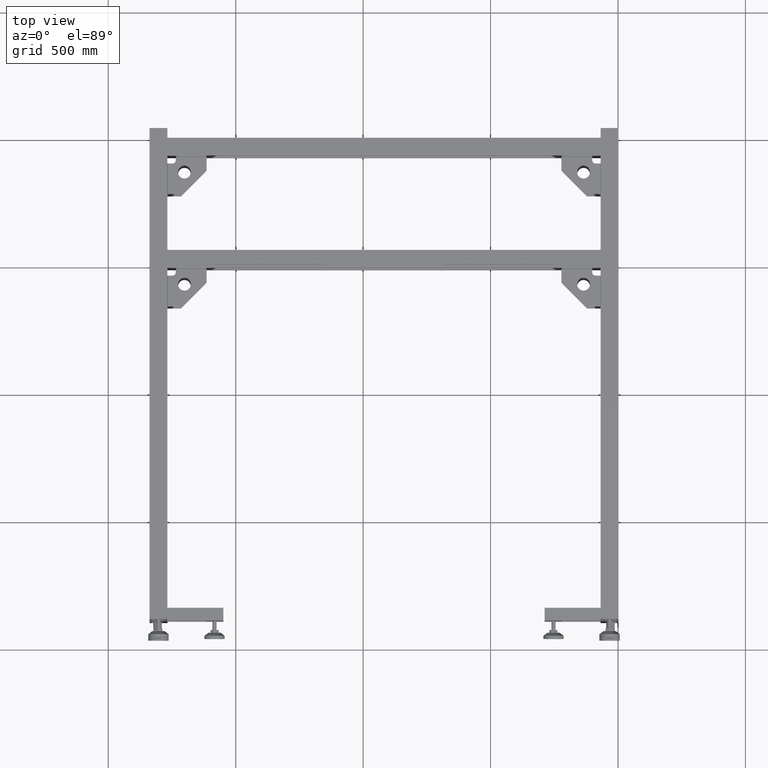
[diagram: clean part render]
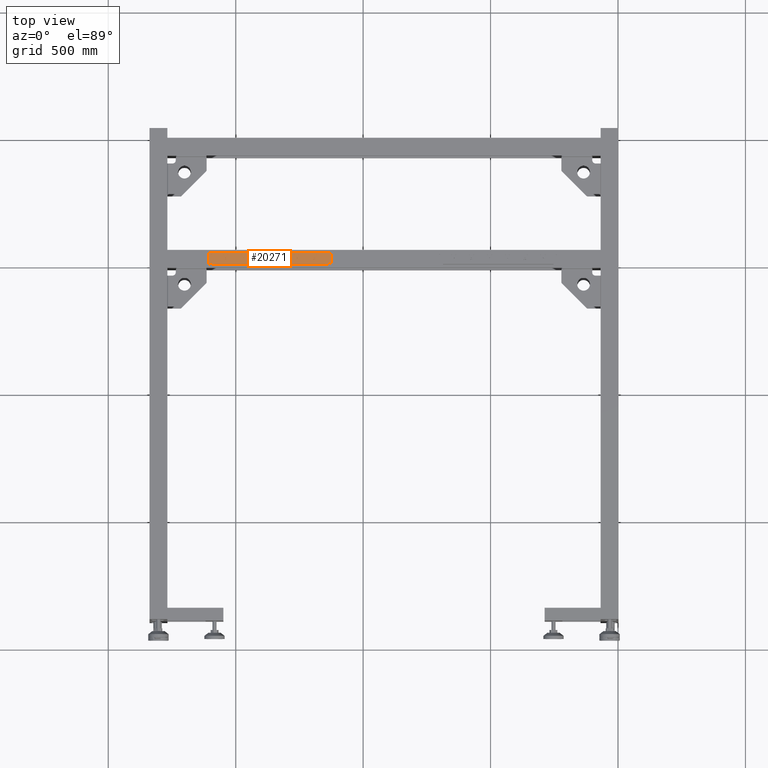
[diagram: same view with one face highlighted and labeled with its STEP entity id]
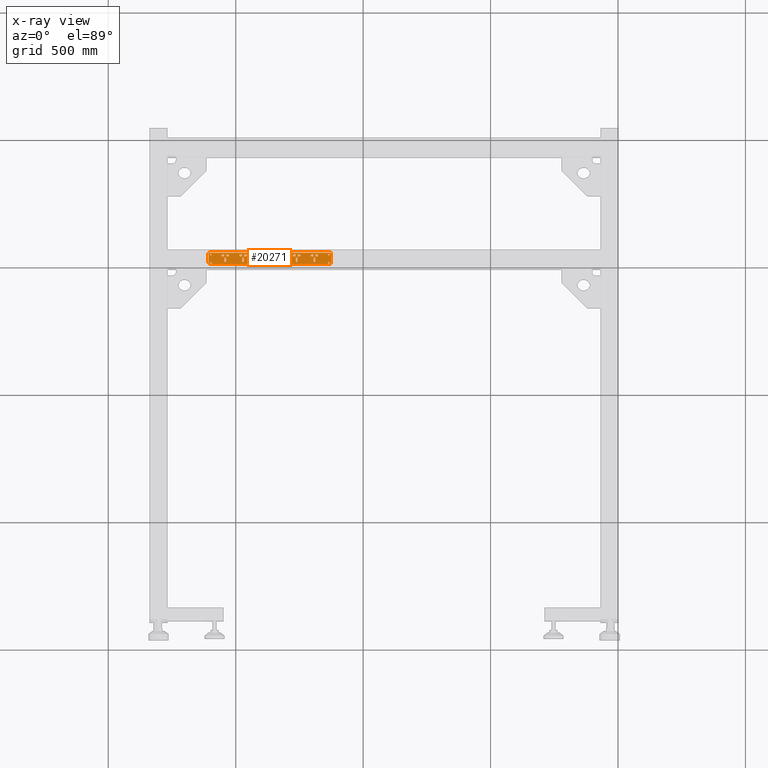
[diagram: x-ray of the same camera — body ghosted, the highlighted face saturated]
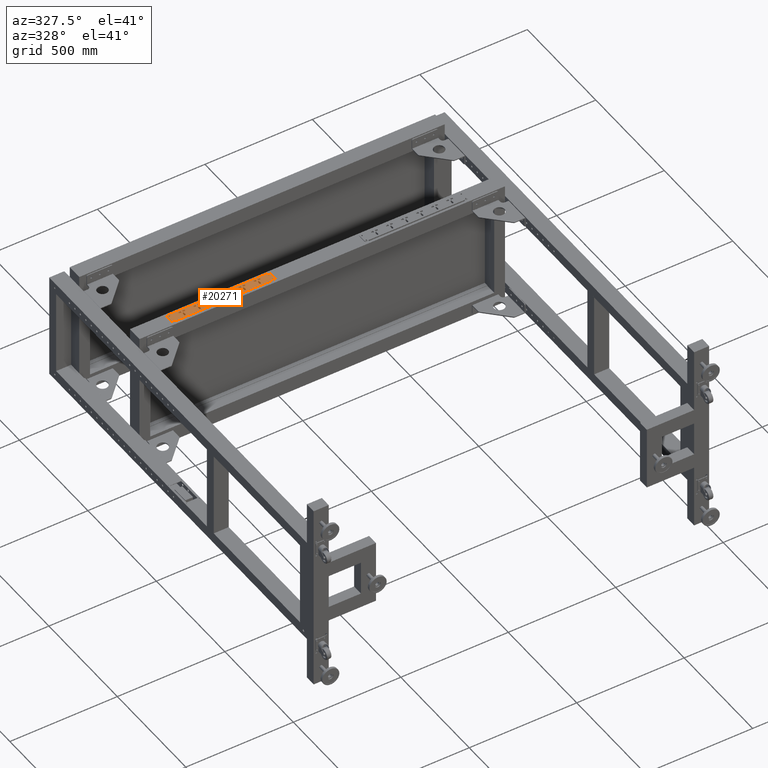
[diagram: same view with one face highlighted and labeled with its STEP entity id]
A machine part, top view. The second image highlights one B-rep face of the part: STEP entity #20271.
The next image is the same camera in x-ray: the body ghosted, the highlighted face saturated — about 0% of this face is hidden behind the body in this view.
A second angle (auxiliary view) of the same face is appended — the face is thin or edge-on in the first view.
In plain terms, the highlighted planar face has unit normal (0, -0, 1).
Its self-contained STEP definition (entity closure, byte-faithful):
#22 = CARTESIAN_POINT ( 'NONE',  ( -1045.672487437185737, 530.4410804020112664, 302.0000000000000568 ) ) ;
#61 = CARTESIAN_POINT ( 'NONE',  ( -1033.672487437185964, 538.1910804020114938, 302.0000000000000568 ) ) ;
#186 = EDGE_CURVE ( 'NONE', #1908, #43717, #67484, .T. ) ;
#215 = EDGE_CURVE ( 'NONE', #63679, #13152, #54337, .T. ) ;
#377 = LINE ( 'NONE', #24736, #36294 ) ;
#441 = VECTOR ( 'NONE', #32676, 1000.000000000000000 ) ;
#448 = VERTEX_POINT ( 'NONE', #21561 ) ;
#568 = ORIENTED_EDGE ( 'NONE', *, *, #37039, .F. ) ;
#574 = FACE_BOUND ( 'NONE', #2433, .T. ) ;
#676 = CARTESIAN_POINT ( 'NONE',  ( -901.1724874371857368, 526.6910804020133128, 302.0000000000000568 ) ) ;
#712 = CARTESIAN_POINT ( 'NONE',  ( -768.6724874371858505, 538.1910804020151318, 302.0000000000000568 ) ) ;
#783 = LINE ( 'NONE', #37068, #1087 ) ;
#815 = VERTEX_POINT ( 'NONE', #73625 ) ;
#927 = AXIS2_PLACEMENT_3D ( 'NONE', #63712, #57734, #3095 ) ;
#962 = FACE_BOUND ( 'NONE', #26630, .T. ) ;
#967 = VERTEX_POINT ( 'NONE', #62808 ) ;
#1087 = VECTOR ( 'NONE', #67020, 1000.000000000000000 ) ;
#1245 = DIRECTION ( 'NONE',  ( 1.000000000000000000, 1.400000000000000030E-14, 4.199999999999999789E-29 ) ) ;
#1451 = VERTEX_POINT ( 'NONE', #4076 ) ;
#1544 = VERTEX_POINT ( 'NONE', #23627 ) ;
#1549 = VERTEX_POINT ( 'NONE', #47964 ) ;
#1551 = ORIENTED_EDGE ( 'NONE', *, *, #21680, .F. ) ;
#1577 = LINE ( 'NONE', #26314, #441 ) ;
#1614 = VECTOR ( 'NONE', #22892, 1000.000000000000000 ) ;
#1623 = CARTESIAN_POINT ( 'NONE',  ( -816.6724874371858505, 537.9410804020144496, 302.0000000000000568 ) ) ;
#1671 = CIRCLE ( 'NONE', #37309, 4.249999999999976019 ) ;
#1883 = CARTESIAN_POINT ( 'NONE',  ( -698.6724874371859642, 538.1910804020162686, 302.0000000000000568 ) ) ;
#1907 = DIRECTION ( 'NONE',  ( -2.612289469706265384E-14, 1.000000000000000000, 0.000000000000000000 ) ) ;
#1908 = VERTEX_POINT ( 'NONE', #41072 ) ;
#2005 = CARTESIAN_POINT ( 'NONE',  ( -768.6724874371857368, 530.4410804020152455, 302.0000000000000568 ) ) ;
#2015 = ORIENTED_EDGE ( 'NONE', *, *, #43876, .F. ) ;
#2033 = CARTESIAN_POINT ( 'NONE',  ( -753.6724874371858505, 531.6910804020153591, 302.0000000000000568 ) ) ;
#2206 = AXIS2_PLACEMENT_3D ( 'NONE', #18240, #72487, #7032 ) ;
#2353 = EDGE_CURVE ( 'NONE', #46213, #75064, #67063, .T. ) ;
#2381 = CARTESIAN_POINT ( 'NONE',  ( -689.8400047153155583, 520.4767946877306031, 302.0000000000000000 ) ) ;
#2409 = CARTESIAN_POINT ( 'NONE',  ( -966.6724874371858505, 530.4410804020124033, 302.0000000000000568 ) ) ;
#2424 = DIRECTION ( 'NONE',  ( 0.000000000000000000, -2.999999999999999839E-15, 1.000000000000000000 ) ) ;
#2433 = EDGE_LOOP ( 'NONE', ( #66484, #38442, #61606, #41395, #39070, #38218, #73807, #76182 ) ) ;
#2472 = CARTESIAN_POINT ( 'NONE',  ( -893.6724874371858505, 538.1910804020133128, 302.0000000000000568 ) ) ;
#2484 = EDGE_CURVE ( 'NONE', #30840, #46988, #55303, .T. ) ;
#2631 = VERTEX_POINT ( 'NONE', #44898 ) ;
#2714 = DIRECTION ( 'NONE',  ( 1.400000000000000030E-14, -1.000000000000000000, -2.999999999999999839E-15 ) ) ;
#2749 = EDGE_CURVE ( 'NONE', #29313, #5406, #78267, .T. ) ;
#2824 = ORIENTED_EDGE ( 'NONE', *, *, #27413, .F. ) ;
#3095 = DIRECTION ( 'NONE',  ( 0.000000000000000000, 1.000000000000000000, 0.000000000000000000 ) ) ;
#3096 = DIRECTION ( 'NONE',  ( -0.9993628543475490122, -0.03569153051242682229, -1.070745915372804561E-16 ) ) ;
#3105 = LINE ( 'NONE', #74921, #78517 ) ;
#3196 = ORIENTED_EDGE ( 'NONE', *, *, #56172, .F. ) ;
#3263 = CARTESIAN_POINT ( 'NONE',  ( -698.6724874371859642, 538.1910804020162686, 302.0000000000000568 ) ) ;
#3331 = ORIENTED_EDGE ( 'NONE', *, *, #8494, .F. ) ;
#3339 = CARTESIAN_POINT ( 'NONE',  ( -626.1724874371859642, 545.4410804020170644, 302.0000000000001137 ) ) ;
#3371 = EDGE_CURVE ( 'NONE', #70842, #49850, #74552, .T. ) ;
#3496 = AXIS2_PLACEMENT_3D ( 'NONE', #14506, #38845, #52385 ) ;
#3539 = VERTEX_POINT ( 'NONE', #71712 ) ;
#3550 = CIRCLE ( 'NONE', #67225, 4.249999999999976019 ) ;
#3592 = ORIENTED_EDGE ( 'NONE', *, *, #58951, .F. ) ;
#3726 = ORIENTED_EDGE ( 'NONE', *, *, #67766, .F. ) ;
#4076 = CARTESIAN_POINT ( 'NONE',  ( -832.5049701590555742, 520.4767946877286704, 302.0000000000000000 ) ) ;
#4220 = CIRCLE ( 'NONE', #15731, 3.000000000000002665 ) ;
#4343 = CARTESIAN_POINT ( 'NONE',  ( -905.6724874371857368, 530.4410804020131991, 302.0000000000000568 ) ) ;
#4356 = CARTESIAN_POINT ( 'NONE',  ( -1048.672487437185737, 531.6910804020111527, 302.0000000000000568 ) ) ;
#4534 = CARTESIAN_POINT ( 'NONE',  ( -698.6724874371859642, 539.4410804020162686, 302.0000000000000568 ) ) ;
#4539 = CARTESIAN_POINT ( 'NONE',  ( -1042.504970159055574, 520.4767946877256009, 302.0000000000000000 ) ) ;
#4555 = EDGE_LOOP ( 'NONE', ( #47669, #16045, #24658, #4705, #3196, #24639, #46516, #70162 ) ) ;
#4694 = LINE ( 'NONE', #35037, #62698 ) ;
#4705 = ORIENTED_EDGE ( 'NONE', *, *, #3371, .F. ) ;
#4890 = EDGE_LOOP ( 'NONE', ( #23219, #10877, #31539, #17911, #568, #45044, #68764, #27514 ) ) ;
#4923 = LINE ( 'NONE', #12475, #39778 ) ;
#5084 = CARTESIAN_POINT ( 'NONE',  ( -1033.672487437185737, 531.6910804020113801, 302.0000000000000568 ) ) ;
#5114 = LINE ( 'NONE', #76956, #7867 ) ;
#5149 = CARTESIAN_POINT ( 'NONE',  ( -695.6724874371857368, 530.4410804020161549, 302.0000000000000568 ) ) ;
#5153 = VERTEX_POINT ( 'NONE', #15659 ) ;
#5189 = VERTEX_POINT ( 'NONE', #6027 ) ;
#5223 = LINE ( 'NONE', #47942, #28410 ) ;
#5230 = LINE ( 'NONE', #29584, #37350 ) ;
#5304 = EDGE_CURVE ( 'NONE', #66668, #68160, #8144, .T. ) ;
#5338 = VERTEX_POINT ( 'NONE', #68647 ) ;
#5372 = DIRECTION ( 'NONE',  ( -1.000000000000000000, -1.400000000000000030E-14, -4.199999999999999789E-29 ) ) ;
#5406 = VERTEX_POINT ( 'NONE', #43939 ) ;
#5445 = ORIENTED_EDGE ( 'NONE', *, *, #50927, .F. ) ;
#5459 = VERTEX_POINT ( 'NONE', #76578 ) ;
#5518 = VERTEX_POINT ( 'NONE', #21554 ) ;
#5897 = ORIENTED_EDGE ( 'NONE', *, *, #45465, .F. ) ;
#5980 = CARTESIAN_POINT ( 'NONE',  ( -828.1724874371855094, 513.4306817573161652, 302.0000000000000000 ) ) ;
#5988 = EDGE_CURVE ( 'NONE', #71377, #51622, #52066, .T. ) ;
#5993 = VECTOR ( 'NONE', #43650, 1000.000000000000000 ) ;
#6027 = CARTESIAN_POINT ( 'NONE',  ( -1101.172487437185964, 545.4410804020104706, 302.0000000000001137 ) ) ;
#6029 = DIRECTION ( 'NONE',  ( -0.9993628543475501225, 0.03569153051239834507, 1.070745915371950126E-16 ) ) ;
#6049 = CARTESIAN_POINT ( 'NONE',  ( -1038.172487437185282, 509.4410804020114369, 302.0000000000000000 ) ) ;
#6096 = CARTESIAN_POINT ( 'NONE',  ( -845.6724874371859642, 537.9410804020141086, 302.0000000000000568 ) ) ;
#6122 = FACE_BOUND ( 'NONE', #40321, .T. ) ;
#6152 = EDGE_CURVE ( 'NONE', #60689, #32811, #33857, .T. ) ;
#6198 = CARTESIAN_POINT ( 'NONE',  ( -768.6724874371857368, 530.4410804020152455, 302.0000000000000568 ) ) ;
#6216 = CARTESIAN_POINT ( 'NONE',  ( -676.6724874371857368, 531.9410804020164960, 302.0000000000000568 ) ) ;
#6237 = DIRECTION ( 'NONE',  ( 0.000000000000000000, -2.999999999999999839E-15, 1.000000000000000000 ) ) ;
#6246 = CARTESIAN_POINT ( 'NONE',  ( -978.6724874371858505, 531.6910804020122896, 302.0000000000000568 ) ) ;
#6287 = VERTEX_POINT ( 'NONE', #14878 ) ;
#6366 = CARTESIAN_POINT ( 'NONE',  ( -915.6724874371857368, 531.9410804020130854, 302.0000000000000568 ) ) ;
#6371 = CARTESIAN_POINT ( 'NONE',  ( -915.6724874371858505, 537.9410804020130854, 302.0000000000000568 ) ) ;
#6434 = CARTESIAN_POINT ( 'NONE',  ( -694.1724874371855094, 509.4410804020162118, 302.0000000000000000 ) ) ;
#6482 = CARTESIAN_POINT ( 'NONE',  ( -1097.172487437185509, 508.9410804020105843, 302.0000000000000000 ) ) ;
#6515 = FACE_BOUND ( 'NONE', #26602, .T. ) ;
#6614 = VECTOR ( 'NONE', #58458, 1000.000000000000000 ) ;
#6615 = EDGE_CURVE ( 'NONE', #51899, #76006, #78652, .T. ) ;
#6678 = EDGE_CURVE ( 'NONE', #56839, #2631, #25995, .T. ) ;
#6736 = CARTESIAN_POINT ( 'NONE',  ( -908.6724874371858505, 538.1910804020131991, 302.0000000000000568 ) ) ;
#6771 = DIRECTION ( 'NONE',  ( 0.9993628543475501225, -0.03569153051239824792, -1.070745915371947291E-16 ) ) ;
#6821 = LINE ( 'NONE', #37551, #33893 ) ;
#6917 = VERTEX_POINT ( 'NONE', #17163 ) ;
#7032 = DIRECTION ( 'NONE',  ( -2.612289469706265384E-14, 1.000000000000000000, 0.000000000000000000 ) ) ;
#7287 = VERTEX_POINT ( 'NONE', #9463 ) ;
#7361 = ORIENTED_EDGE ( 'NONE', *, *, #18077, .F. ) ;
#7419 = CARTESIAN_POINT ( 'NONE',  ( -1106.172487437185964, 540.4410804020104706, 302.0000000000000568 ) ) ;
#7424 = ORIENTED_EDGE ( 'NONE', *, *, #50030, .F. ) ;
#7510 = LINE ( 'NONE', #43854, #27629 ) ;
#7523 = VERTEX_POINT ( 'NONE', #56100 ) ;
#7540 = AXIS2_PLACEMENT_3D ( 'NONE', #50200, #61337, #1907 ) ;
#7566 = CARTESIAN_POINT ( 'NONE',  ( -905.6724874371857368, 530.4410804020131991, 302.0000000000000568 ) ) ;
#7651 = ORIENTED_EDGE ( 'NONE', *, *, #34990, .F. ) ;
#7844 = CARTESIAN_POINT ( 'NONE',  ( -893.6724874371857368, 530.4410804020134265, 302.0000000000000568 ) ) ;
#7867 = VECTOR ( 'NONE', #78121, 1000.000000000000000 ) ;
#7927 = AXIS2_PLACEMENT_3D ( 'NONE', #72928, #43392, #50183 ) ;
#8004 = CARTESIAN_POINT ( 'NONE',  ( -1041.172487437185509, 516.4410804020113801, 302.0000000000000000 ) ) ;
#8118 = VERTEX_POINT ( 'NONE', #9577 ) ;
#8131 = VECTOR ( 'NONE', #16315, 1000.000000000000000 ) ;
#8144 = CIRCLE ( 'NONE', #14542, 3.000000000000002665 ) ;
#8164 = DIRECTION ( 'NONE',  ( -1.400000000000000030E-14, 1.000000000000000000, 2.999999999999999839E-15 ) ) ;
#8264 = VERTEX_POINT ( 'NONE', #60611 ) ;
#8393 = VECTOR ( 'NONE', #75411, 1000.000000000000000 ) ;
#8396 = EDGE_CURVE ( 'NONE', #8118, #61725, #61382, .T. ) ;
#8401 = CARTESIAN_POINT ( 'NONE',  ( -753.6724874371859642, 538.1910804020153591, 302.0000000000000568 ) ) ;
#8462 = CARTESIAN_POINT ( 'NONE',  ( -635.1724874371858505, 540.9410804020171781, 302.0000000000000568 ) ) ;
#8485 = VERTEX_POINT ( 'NONE', #46203 ) ;
#8487 = CARTESIAN_POINT ( 'NONE',  ( -915.6724874371857368, 531.9410804020130854, 302.0000000000000568 ) ) ;
#8494 = EDGE_CURVE ( 'NONE', #18213, #1544, #22665, .T. ) ;
#8533 = DIRECTION ( 'NONE',  ( 0.000000000000000000, 1.000000000000000000, 0.000000000000000000 ) ) ;
#8686 = EDGE_LOOP ( 'NONE', ( #52357, #55835 ) ) ;
#8832 = DIRECTION ( 'NONE',  ( 1.400000000000000030E-14, -1.000000000000000000, -2.999999999999999839E-15 ) ) ;
#8881 = DIRECTION ( 'NONE',  ( 0.000000000000000000, 1.000000000000000000, 0.000000000000000000 ) ) ;
#8923 = LINE ( 'NONE', #58403, #45137 ) ;
#9049 = VECTOR ( 'NONE', #32962, 1000.000000000000000 ) ;
#9116 = EDGE_CURVE ( 'NONE', #5518, #9882, #377, .T. ) ;
#9166 = VECTOR ( 'NONE', #69564, 1000.000000000000000 ) ;
#9182 = CARTESIAN_POINT ( 'NONE',  ( -823.6724874371858505, 530.4410804020144496, 302.0000000000000568 ) ) ;
#9199 = VERTEX_POINT ( 'NONE', #6736 ) ;
#9210 = CARTESIAN_POINT ( 'NONE',  ( -1097.172487437185964, 540.9410804020106980, 302.0000000000000568 ) ) ;
#9289 = VECTOR ( 'NONE', #28158, 1000.000000000000000 ) ;
#9317 = DIRECTION ( 'NONE',  ( 1.000000000000000000, 1.400000000000000030E-14, 4.199999999999999789E-29 ) ) ;
#9370 = VECTOR ( 'NONE', #63022, 1000.000000000000000 ) ;
#9427 = DIRECTION ( 'NONE',  ( 1.400000000000000030E-14, -1.000000000000000000, -2.999999999999999839E-15 ) ) ;
#9463 = CARTESIAN_POINT ( 'NONE',  ( -974.1724874371855094, 509.4410804020122896, 302.0000000000000000 ) ) ;
#9498 = EDGE_CURVE ( 'NONE', #21287, #8118, #4694, .T. ) ;
#9544 = CARTESIAN_POINT ( 'NONE',  ( -758.1724874371855094, 509.4410804020153023, 302.0000000000000000 ) ) ;
#9548 = EDGE_CURVE ( 'NONE', #51622, #12308, #65751, .T. ) ;
#9565 = EDGE_CURVE ( 'NONE', #6287, #35314, #38504, .T. ) ;
#9577 = CARTESIAN_POINT ( 'NONE',  ( -835.6724874371858505, 530.4410804020143360, 302.0000000000000568 ) ) ;
#9601 = DIRECTION ( 'NONE',  ( 1.400000000000000030E-14, -1.000000000000000000, -2.999999999999999839E-15 ) ) ;
#9625 = DIRECTION ( 'NONE',  ( 0.000000000000000000, -2.999999999999999839E-15, 1.000000000000000000 ) ) ;
#9708 = CARTESIAN_POINT ( 'NONE',  ( -915.6724874371858505, 537.9410804020130854, 302.0000000000000568 ) ) ;
#9882 = VERTEX_POINT ( 'NONE', #54361 ) ;
#9920 = DIRECTION ( 'NONE',  ( 0.000000000000000000, -2.999999999999999839E-15, 1.000000000000000000 ) ) ;
#9979 = ORIENTED_EDGE ( 'NONE', *, *, #65279, .F. ) ;
#10069 = ORIENTED_EDGE ( 'NONE', *, *, #12655, .F. ) ;
#10100 = DIRECTION ( 'NONE',  ( -1.400000000000000030E-14, 1.000000000000000000, 2.999999999999999839E-15 ) ) ;
#10128 = ORIENTED_EDGE ( 'NONE', *, *, #11744, .F. ) ;
#10198 = VECTOR ( 'NONE', #45540, 1000.000000000000000 ) ;
#10246 = CARTESIAN_POINT ( 'NONE',  ( -823.6724874371859642, 539.4410804020144496, 302.0000000000000568 ) ) ;
#10290 = DIRECTION ( 'NONE',  ( 1.000000000000000000, 1.400000000000000030E-14, 4.199999999999999789E-29 ) ) ;
#10293 = VECTOR ( 'NONE', #51246, 1000.000000000000000 ) ;
#10384 = LINE ( 'NONE', #41122, #19530 ) ;
#10388 = VECTOR ( 'NONE', #41449, 1000.000000000000000 ) ;
#10418 = CARTESIAN_POINT ( 'NONE',  ( -761.1724874371857368, 523.4410804020153591, 302.0000000000000000 ) ) ;
#10451 = CIRCLE ( 'NONE', #14261, 5.000000000000004441 ) ;
#10521 = VERTEX_POINT ( 'NONE', #45035 ) ;
#10542 = DIRECTION ( 'NONE',  ( 0.000000000000000000, -2.999999999999999839E-15, 1.000000000000000000 ) ) ;
#10582 = ORIENTED_EDGE ( 'NONE', *, *, #55853, .F. ) ;
#10629 = ORIENTED_EDGE ( 'NONE', *, *, #53149, .F. ) ;
#10641 = DIRECTION ( 'NONE',  ( 0.000000000000000000, -2.999999999999999839E-15, 1.000000000000000000 ) ) ;
#10663 = EDGE_CURVE ( 'NONE', #65669, #55357, #51336, .T. ) ;
#10704 = CIRCLE ( 'NONE', #55304, 4.249999999999976019 ) ;
#10816 = ORIENTED_EDGE ( 'NONE', *, *, #34393, .T. ) ;
#10877 = ORIENTED_EDGE ( 'NONE', *, *, #70610, .F. ) ;
#10878 = EDGE_LOOP ( 'NONE', ( #7361, #57176, #52979, #21794, #77477, #69071, #38000, #65857 ) ) ;
#10906 = DIRECTION ( 'NONE',  ( -2.612289469706265384E-14, 1.000000000000000000, 0.000000000000000000 ) ) ;
#11010 = EDGE_CURVE ( 'NONE', #20001, #66892, #14995, .T. ) ;
#11044 = EDGE_CURVE ( 'NONE', #67577, #18912, #28566, .T. ) ;
#11084 = CARTESIAN_POINT ( 'NONE',  ( -963.6724874371859642, 539.4410804020124033, 302.0000000000000568 ) ) ;
#11126 = VERTEX_POINT ( 'NONE', #53289 ) ;
#11538 = VERTEX_POINT ( 'NONE', #5980 ) ;
#11725 = PLANE ( 'NONE',  #47056 ) ;
#11744 = EDGE_CURVE ( 'NONE', #1544, #45107, #16688, .T. ) ;
#11808 = CARTESIAN_POINT ( 'NONE',  ( -775.6724874371858505, 537.9410804020150181, 302.0000000000000568 ) ) ;
#11813 = EDGE_CURVE ( 'NONE', #12308, #72037, #29060, .T. ) ;
#11934 = VERTEX_POINT ( 'NONE', #24656 ) ;
#11959 = ORIENTED_EDGE ( 'NONE', *, *, #37218, .F. ) ;
#12062 = EDGE_CURVE ( 'NONE', #77068, #44010, #74877, .T. ) ;
#12080 = DIRECTION ( 'NONE',  ( 0.000000000000000000, 1.000000000000000000, 0.000000000000000000 ) ) ;
#12139 = FACE_BOUND ( 'NONE', #10878, .T. ) ;
#12284 = CARTESIAN_POINT ( 'NONE',  ( -683.6724874371858505, 538.1910804020163823, 302.0000000000000568 ) ) ;
#12308 = VERTEX_POINT ( 'NONE', #35734 ) ;
#12316 = VECTOR ( 'NONE', #66489, 1000.000000000000000 ) ;
#12475 = CARTESIAN_POINT ( 'NONE',  ( -1033.672487437185737, 530.4410804020113801, 302.0000000000000568 ) ) ;
#12542 = EDGE_CURVE ( 'NONE', #1549, #51139, #72693, .T. ) ;
#12655 = EDGE_CURVE ( 'NONE', #25097, #20589, #22926, .T. ) ;
#12657 = VERTEX_POINT ( 'NONE', #51100 ) ;
#12830 = DIRECTION ( 'NONE',  ( 1.000000000000000000, 1.400000000000000030E-14, 4.199999999999999789E-29 ) ) ;
#13024 = EDGE_CURVE ( 'NONE', #5459, #29545, #783, .T. ) ;
#13120 = DIRECTION ( 'NONE',  ( 0.000000000000000000, -2.999999999999999839E-15, 1.000000000000000000 ) ) ;
#13152 = VERTEX_POINT ( 'NONE', #34147 ) ;
#13284 = DIRECTION ( 'NONE',  ( 0.000000000000000000, -2.999999999999999839E-15, 1.000000000000000000 ) ) ;
#13333 = LINE ( 'NONE', #37665, #64700 ) ;
#13711 = LINE ( 'NONE', #55617, #5993 ) ;
#13768 = ORIENTED_EDGE ( 'NONE', *, *, #69738, .F. ) ;
#13769 = CARTESIAN_POINT ( 'NONE',  ( -688.1724874371855094, 509.4410804020163255, 302.0000000000000000 ) ) ;
#13772 = VERTEX_POINT ( 'NONE', #52803 ) ;
#13815 = EDGE_LOOP ( 'NONE', ( #15142, #34530, #27618, #13768, #24069, #33235, #78482 ) ) ;
#14261 = AXIS2_PLACEMENT_3D ( 'NONE', #21032, #70481, #38578 ) ;
#14407 = CARTESIAN_POINT ( 'NONE',  ( -626.1724874371858505, 540.4410804020171781, 302.0000000000000568 ) ) ;
#14428 = ORIENTED_EDGE ( 'NONE', *, *, #9548, .F. ) ;
#14448 = VECTOR ( 'NONE', #64214, 1000.000000000000000 ) ;
#14506 = CARTESIAN_POINT ( 'NONE',  ( -635.1724874371855094, 505.9410804020170076, 301.9999999999999432 ) ) ;
#14542 = AXIS2_PLACEMENT_3D ( 'NONE', #16847, #29999, #17639 ) ;
#14662 = VERTEX_POINT ( 'NONE', #35819 ) ;
#14688 = DIRECTION ( 'NONE',  ( -1.400000000000000030E-14, 1.000000000000000000, 2.999999999999999839E-15 ) ) ;
#14814 = DIRECTION ( 'NONE',  ( -1.000000000000000000, -1.400000000000000030E-14, -4.199999999999999789E-29 ) ) ;
#14878 = CARTESIAN_POINT ( 'NONE',  ( -688.1724874371856231, 513.4306817573182116, 302.0000000000000000 ) ) ;
#14995 = LINE ( 'NONE', #70453, #9289 ) ;
#15142 = ORIENTED_EDGE ( 'NONE', *, *, #27772, .F. ) ;
#15384 = LINE ( 'NONE', #27384, #61319 ) ;
#15391 = EDGE_CURVE ( 'NONE', #14662, #56419, #60245, .T. ) ;
#15439 = CARTESIAN_POINT ( 'NONE',  ( -985.6724874371859642, 537.9410804020121759, 302.0000000000000568 ) ) ;
#15476 = VERTEX_POINT ( 'NONE', #17981 ) ;
#15542 = LINE ( 'NONE', #39888, #17758 ) ;
#15578 = CIRCLE ( 'NONE', #7927, 5.000000000000004441 ) ;
#15659 = CARTESIAN_POINT ( 'NONE',  ( -1045.672487437185964, 539.4410804020113801, 302.0000000000000568 ) ) ;
#15693 = VECTOR ( 'NONE', #63658, 1000.000000000000000 ) ;
#15731 = AXIS2_PLACEMENT_3D ( 'NONE', #44381, #45164, #68710 ) ;
#15753 = VECTOR ( 'NONE', #35430, 1000.000000000000000 ) ;
#15889 = CARTESIAN_POINT ( 'NONE',  ( -768.6724874371858505, 538.1910804020151318, 302.0000000000000568 ) ) ;
#15899 = DIRECTION ( 'NONE',  ( 0.000000000000000000, 1.000000000000000000, 0.000000000000000000 ) ) ;
#16045 = ORIENTED_EDGE ( 'NONE', *, *, #72258, .F. ) ;
#16097 = LINE ( 'NONE', #3339, #9166 ) ;
#16315 = DIRECTION ( 'NONE',  ( 1.000000000000000000, 1.400000000000000030E-14, 4.199999999999999789E-29 ) ) ;
#16322 = CARTESIAN_POINT ( 'NONE',  ( -1101.172487437185737, 540.4410804020105843, 302.0000000000000568 ) ) ;
#16396 = CIRCLE ( 'NONE', #74990, 3.249999999999975131 ) ;
#16592 = CIRCLE ( 'NONE', #25556, 3.249999999999975131 ) ;
#16597 = VERTEX_POINT ( 'NONE', #39517 ) ;
#16623 = DIRECTION ( 'NONE',  ( 1.400000000000000030E-14, -1.000000000000000000, -2.999999999999999839E-15 ) ) ;
#16626 = VERTEX_POINT ( 'NONE', #74669 ) ;
#16688 = LINE ( 'NONE', #40239, #30782 ) ;
#16847 = CARTESIAN_POINT ( 'NONE',  ( -635.1724874371858505, 537.9410804020171781, 302.0000000000000568 ) ) ;
#16911 = VECTOR ( 'NONE', #67644, 1000.000000000000000 ) ;
#17084 = CARTESIAN_POINT ( 'NONE',  ( -893.6724874371857368, 530.4410804020134265, 302.0000000000000568 ) ) ;
#17163 = CARTESIAN_POINT ( 'NONE',  ( -631.1724874371853957, 501.4410804020170644, 301.9999999999999432 ) ) ;
#17189 = VECTOR ( 'NONE', #70241, 1000.000000000000000 ) ;
#17271 = DIRECTION ( 'NONE',  ( -1.400000000000000030E-14, 1.000000000000000000, 2.999999999999999839E-15 ) ) ;
#17370 = VERTEX_POINT ( 'NONE', #6096 ) ;
#17437 = EDGE_CURVE ( 'NONE', #52175, #3539, #59406, .T. ) ;
#17486 = CARTESIAN_POINT ( 'NONE',  ( -823.6724874371859642, 539.4410804020144496, 302.0000000000000568 ) ) ;
#17532 = EDGE_CURVE ( 'NONE', #64637, #34325, #69608, .T. ) ;
#17639 = DIRECTION ( 'NONE',  ( 0.000000000000000000, 1.000000000000000000, 0.000000000000000000 ) ) ;
#17738 = FACE_BOUND ( 'NONE', #8686, .T. ) ;
#17758 = VECTOR ( 'NONE', #52657, 1000.000000000000000 ) ;
#17855 = VECTOR ( 'NONE', #56329, 1000.000000000000000 ) ;
#17911 = ORIENTED_EDGE ( 'NONE', *, *, #2749, .F. ) ;
#17965 = ORIENTED_EDGE ( 'NONE', *, *, #25810, .F. ) ;
#17981 = CARTESIAN_POINT ( 'NONE',  ( -691.1724874371857368, 526.6910804020162686, 302.0000000000000568 ) ) ;
#18017 = DIRECTION ( 'NONE',  ( -1.400000000000000030E-14, 1.000000000000000000, 2.999999999999999839E-15 ) ) ;
#18077 = EDGE_CURVE ( 'NONE', #48214, #68248, #22715, .T. ) ;
#18132 = FACE_BOUND ( 'NONE', #37019, .T. ) ;
#18137 = VECTOR ( 'NONE', #9601, 1000.000000000000000 ) ;
#18142 = CARTESIAN_POINT ( 'NONE',  ( -898.1724874371855094, 509.4410804020133128, 302.0000000000000000 ) ) ;
#18169 = DIRECTION ( 'NONE',  ( 0.000000000000000000, 1.000000000000000000, 0.000000000000000000 ) ) ;
#18208 = AXIS2_PLACEMENT_3D ( 'NONE', #52987, #70551, #15899 ) ;
#18213 = VERTEX_POINT ( 'NONE', #73732 ) ;
#18240 = CARTESIAN_POINT ( 'NONE',  ( -971.1724874371855094, 516.4410804020122896, 302.0000000000000000 ) ) ;
#18493 = CARTESIAN_POINT ( 'NONE',  ( -775.6724874371858505, 537.9410804020150181, 302.0000000000000568 ) ) ;
#18529 = DIRECTION ( 'NONE',  ( 0.000000000000000000, -2.999999999999999839E-15, 1.000000000000000000 ) ) ;
#18579 = DIRECTION ( 'NONE',  ( -1.400000000000000030E-14, 1.000000000000000000, 2.999999999999999839E-15 ) ) ;
#18590 = ORIENTED_EDGE ( 'NONE', *, *, #75228, .T. ) ;
#18667 = LINE ( 'NONE', #11084, #15753 ) ;
#18695 = ORIENTED_EDGE ( 'NONE', *, *, #26065, .F. ) ;
#18771 = VERTEX_POINT ( 'NONE', #46384 ) ;
#18774 = DIRECTION ( 'NONE',  ( -2.612289469706265384E-14, 1.000000000000000000, 0.000000000000000000 ) ) ;
#18912 = VERTEX_POINT ( 'NONE', #22828 ) ;
#18918 = FACE_BOUND ( 'NONE', #13815, .T. ) ;
#18920 = LINE ( 'NONE', #51084, #62426 ) ;
#18963 = LINE ( 'NONE', #62394, #55700 ) ;
#18981 = LINE ( 'NONE', #43307, #16911 ) ;
#19016 = VERTEX_POINT ( 'NONE', #1623 ) ;
#19076 = EDGE_LOOP ( 'NONE', ( #10128, #3331, #69778, #58967, #33968, #67696, #50951, #66186 ) ) ;
#19114 = CARTESIAN_POINT ( 'NONE',  ( -1026.672487437185737, 537.9410804020114938, 302.0000000000000568 ) ) ;
#19261 = EDGE_CURVE ( 'NONE', #34128, #60461, #29489, .T. ) ;
#19270 = LINE ( 'NONE', #25649, #23326 ) ;
#19295 = DIRECTION ( 'NONE',  ( 1.400000000000000030E-14, -1.000000000000000000, -2.999999999999999839E-15 ) ) ;
#19530 = VECTOR ( 'NONE', #66247, 1000.000000000000000 ) ;
#19578 = ORIENTED_EDGE ( 'NONE', *, *, #28335, .F. ) ;
#19581 = CARTESIAN_POINT ( 'NONE',  ( -904.1724874371855094, 509.4410804020133128, 302.0000000000000000 ) ) ;
#19652 = CARTESIAN_POINT ( 'NONE',  ( -1041.172487437185737, 526.6910804020112664, 302.0000000000000568 ) ) ;
#19658 = CARTESIAN_POINT ( 'NONE',  ( -963.6724874371858505, 531.6910804020125170, 302.0000000000000568 ) ) ;
#19686 = EDGE_CURVE ( 'NONE', #11126, #5338, #75705, .T. ) ;
#19755 = CARTESIAN_POINT ( 'NONE',  ( -893.6724874371859642, 539.4410804020134265, 302.0000000000000568 ) ) ;
#19791 = CARTESIAN_POINT ( 'NONE',  ( -761.1724874371858505, 526.6910804020152455, 302.0000000000000568 ) ) ;
#19870 = CARTESIAN_POINT ( 'NONE',  ( -768.6724874371858505, 539.4410804020151318, 302.0000000000000568 ) ) ;
#20001 = VERTEX_POINT ( 'NONE', #75210 ) ;
#20060 = VERTEX_POINT ( 'NONE', #53638 ) ;
#20152 = DIRECTION ( 'NONE',  ( -0.9993628543475490122, -0.03569153051242682229, -1.070745915372804561E-16 ) ) ;
#20177 = VECTOR ( 'NONE', #23693, 1000.000000000000000 ) ;
#20180 = CARTESIAN_POINT ( 'NONE',  ( -762.5049701590555742, 520.4767946877295799, 302.0000000000000000 ) ) ;
#20271 = ADVANCED_FACE ( 'NONE', ( #962, #36846, #17738, #55608, #18918, #78354, #42059, #23726, #25303, #12139, #48063, #66811, #72386, #78737, #43240, #18132, #574, #6515, #36082, #6122, #42455, #67194, #66401 ), #11725, .T. ) ;
#20306 = ORIENTED_EDGE ( 'NONE', *, *, #53003, .F. ) ;
#20331 = CARTESIAN_POINT ( 'NONE',  ( -901.1724874371857368, 523.4410804020133128, 302.0000000000000000 ) ) ;
#20349 = VECTOR ( 'NONE', #12830, 1000.000000000000000 ) ;
#20525 = VERTEX_POINT ( 'NONE', #22004 ) ;
#20536 = CIRCLE ( 'NONE', #47307, 3.249999999999975131 ) ;
#20589 = VERTEX_POINT ( 'NONE', #53111 ) ;
#20600 = ORIENTED_EDGE ( 'NONE', *, *, #186, .F. ) ;
#20740 = CARTESIAN_POINT ( 'NONE',  ( -626.1724874371853957, 501.4410804020171781, 301.9999999999999432 ) ) ;
#20757 = VERTEX_POINT ( 'NONE', #71866 ) ;
#21010 = DIRECTION ( 'NONE',  ( 1.400000000000000030E-14, -1.000000000000000000, -2.999999999999999839E-15 ) ) ;
#21032 = CARTESIAN_POINT ( 'NONE',  ( -631.1724874371855094, 506.4410804020171781, 301.9999999999999432 ) ) ;
#21102 = AXIS2_PLACEMENT_3D ( 'NONE', #55610, #30874, #55216 ) ;
#21211 = VERTEX_POINT ( 'NONE', #712 ) ;
#21213 = LINE ( 'NONE', #58284, #10198 ) ;
#21223 = VERTEX_POINT ( 'NONE', #1883 ) ;
#21263 = CIRCLE ( 'NONE', #927, 3.000000000000002665 ) ;
#21287 = VERTEX_POINT ( 'NONE', #36993 ) ;
#21312 = LINE ( 'NONE', #4534, #1614 ) ;
#21335 = VECTOR ( 'NONE', #63544, 1000.000000000000000 ) ;
#21393 = EDGE_CURVE ( 'NONE', #77170, #44025, #31883, .T. ) ;
#21402 = EDGE_LOOP ( 'NONE', ( #2015, #34648 ) ) ;
#21443 = EDGE_CURVE ( 'NONE', #20060, #57943, #48500, .T. ) ;
#21473 = CARTESIAN_POINT ( 'NONE',  ( -1097.172487437185282, 502.9410804020105843, 301.9999999999999432 ) ) ;
#21530 = LINE ( 'NONE', #7566, #9370 ) ;
#21554 = CARTESIAN_POINT ( 'NONE',  ( -834.1724874371855094, 509.4410804020141654, 302.0000000000000000 ) ) ;
#21561 = CARTESIAN_POINT ( 'NONE',  ( -1033.672487437185737, 531.6910804020113801, 302.0000000000000568 ) ) ;
#21584 = LINE ( 'NONE', #27569, #17189 ) ;
#21595 = DIRECTION ( 'NONE',  ( 1.400000000000000030E-14, -1.000000000000000000, -2.999999999999999839E-15 ) ) ;
#21680 = EDGE_CURVE ( 'NONE', #60084, #69502, #63497, .T. ) ;
#21706 = AXIS2_PLACEMENT_3D ( 'NONE', #54097, #30150, #59662 ) ;
#21745 = EDGE_CURVE ( 'NONE', #44681, #34128, #59097, .T. ) ;
#21749 = CARTESIAN_POINT ( 'NONE',  ( -705.6724874371858505, 531.9410804020160413, 302.0000000000000568 ) ) ;
#21776 = VERTEX_POINT ( 'NONE', #58306 ) ;
#21794 = ORIENTED_EDGE ( 'NONE', *, *, #9498, .F. ) ;
#21934 = VERTEX_POINT ( 'NONE', #22 ) ;
#21996 = LINE ( 'NONE', #52303, #18137 ) ;
#22004 = CARTESIAN_POINT ( 'NONE',  ( -845.6724874371858505, 531.9410804020141086, 302.0000000000000568 ) ) ;
#22109 = VERTEX_POINT ( 'NONE', #19581 ) ;
#22150 = VERTEX_POINT ( 'NONE', #4356 ) ;
#22186 = VERTEX_POINT ( 'NONE', #70978 ) ;
#22231 = EDGE_CURVE ( 'NONE', #5189, #38662, #63645, .T. ) ;
#22306 = CARTESIAN_POINT ( 'NONE',  ( -765.6724874371857368, 530.4410804020152455, 302.0000000000000568 ) ) ;
#22307 = DIRECTION ( 'NONE',  ( 1.400000000000000030E-14, -1.000000000000000000, -2.999999999999999839E-15 ) ) ;
#22314 = DIRECTION ( 'NONE',  ( 0.000000000000000000, -2.999999999999999839E-15, 1.000000000000000000 ) ) ;
#22319 = CARTESIAN_POINT ( 'NONE',  ( -968.1724874371855094, 509.4410804020124033, 302.0000000000000000 ) ) ;
#22371 = ORIENTED_EDGE ( 'NONE', *, *, #17437, .F. ) ;
#22389 = EDGE_CURVE ( 'NONE', #12657, #32379, #55551, .T. ) ;
#22580 = VECTOR ( 'NONE', #72176, 1000.000000000000000 ) ;
#22655 = ORIENTED_EDGE ( 'NONE', *, *, #68790, .F. ) ;
#22665 = LINE ( 'NONE', #71324, #52770 ) ;
#22715 = LINE ( 'NONE', #23108, #22580 ) ;
#22828 = CARTESIAN_POINT ( 'NONE',  ( -956.6724874371859642, 537.9410804020126307, 302.0000000000000568 ) ) ;
#22892 = DIRECTION ( 'NONE',  ( -1.000000000000000000, -1.400000000000000030E-14, -4.199999999999999789E-29 ) ) ;
#22926 = CIRCLE ( 'NONE', #26723, 4.249999999999976019 ) ;
#22939 = LINE ( 'NONE', #23333, #38918 ) ;
#22992 = VECTOR ( 'NONE', #44372, 1000.000000000000000 ) ;
#23063 = VERTEX_POINT ( 'NONE', #29287 ) ;
#23108 = CARTESIAN_POINT ( 'NONE',  ( -838.6724874371859642, 538.1910804020142223, 302.0000000000000568 ) ) ;
#23142 = VERTEX_POINT ( 'NONE', #53235 ) ;
#23180 = DIRECTION ( 'NONE',  ( -0.9993628543475501225, 0.03569153051239834507, 1.070745915371950126E-16 ) ) ;
#23219 = ORIENTED_EDGE ( 'NONE', *, *, #49861, .F. ) ;
#23276 = ORIENTED_EDGE ( 'NONE', *, *, #28645, .F. ) ;
#23281 = CARTESIAN_POINT ( 'NONE',  ( -1048.672487437185737, 531.6910804020111527, 302.0000000000000568 ) ) ;
#23326 = VECTOR ( 'NONE', #55952, 1000.000000000000000 ) ;
#23333 = CARTESIAN_POINT ( 'NONE',  ( -1048.672487437185737, 530.4410804020112664, 302.0000000000000568 ) ) ;
#23405 = CARTESIAN_POINT ( 'NONE',  ( -635.1724874371853957, 502.9410804020171213, 301.9999999999999432 ) ) ;
#23458 = CARTESIAN_POINT ( 'NONE',  ( -698.6724874371858505, 531.6910804020161549, 302.0000000000000568 ) ) ;
#23494 = CARTESIAN_POINT ( 'NONE',  ( -1033.672487437185737, 530.4410804020113801, 302.0000000000000568 ) ) ;
#23627 = CARTESIAN_POINT ( 'NONE',  ( -756.6724874371858505, 530.4410804020154728, 302.0000000000000568 ) ) ;
#23664 = VECTOR ( 'NONE', #16623, 1000.000000000000000 ) ;
#23689 = CARTESIAN_POINT ( 'NONE',  ( -901.1724874371856231, 516.4410804020133128, 302.0000000000000000 ) ) ;
#23693 = DIRECTION ( 'NONE',  ( 1.000000000000000000, 1.400000000000000030E-14, 4.199999999999999789E-29 ) ) ;
#23721 = AXIS2_PLACEMENT_3D ( 'NONE', #67548, #44397, #44011 ) ;
#23726 = FACE_BOUND ( 'NONE', #42763, .T. ) ;
#23731 = ORIENTED_EDGE ( 'NONE', *, *, #65267, .F. ) ;
#23748 = VECTOR ( 'NONE', #1245, 1000.000000000000000 ) ;
#24025 = CARTESIAN_POINT ( 'NONE',  ( -975.6724874371858505, 530.4410804020122896, 302.0000000000000568 ) ) ;
#24043 = ORIENTED_EDGE ( 'NONE', *, *, #74862, .F. ) ;
#24069 = ORIENTED_EDGE ( 'NONE', *, *, #45622, .F. ) ;
#24081 = EDGE_CURVE ( 'NONE', #45107, #56839, #33685, .T. ) ;
#24086 = ORIENTED_EDGE ( 'NONE', *, *, #13024, .F. ) ;
#24109 = CARTESIAN_POINT ( 'NONE',  ( -1039.840004715315672, 520.4767946877257145, 302.0000000000000000 ) ) ;
#24125 = CARTESIAN_POINT ( 'NONE',  ( -753.6724874371857368, 530.4410804020154728, 302.0000000000000568 ) ) ;
#24256 = ORIENTED_EDGE ( 'NONE', *, *, #74628, .F. ) ;
#24353 = EDGE_CURVE ( 'NONE', #31366, #22109, #21996, .T. ) ;
#24398 = DIRECTION ( 'NONE',  ( 1.400000000000000030E-14, -1.000000000000000000, -2.999999999999999839E-15 ) ) ;
#24421 = VECTOR ( 'NONE', #22307, 1000.000000000000000 ) ;
#24599 = CIRCLE ( 'NONE', #55115, 3.249999999999975131 ) ;
#24639 = ORIENTED_EDGE ( 'NONE', *, *, #44045, .F. ) ;
#24656 = CARTESIAN_POINT ( 'NONE',  ( -631.1724874371859642, 545.4410804020170644, 302.0000000000001137 ) ) ;
#24658 = ORIENTED_EDGE ( 'NONE', *, *, #26822, .F. ) ;
#24736 = CARTESIAN_POINT ( 'NONE',  ( -828.1724874371855094, 509.4410804020143928, 302.0000000000000000 ) ) ;
#24752 = CARTESIAN_POINT ( 'NONE',  ( -1048.672487437185737, 538.1910804020112664, 302.0000000000000568 ) ) ;
#24775 = LINE ( 'NONE', #43494, #75229 ) ;
#24849 = VERTEX_POINT ( 'NONE', #19755 ) ;
#25097 = VERTEX_POINT ( 'NONE', #4539 ) ;
#25125 = CARTESIAN_POINT ( 'NONE',  ( -695.6724874371858505, 539.4410804020162686, 302.0000000000000568 ) ) ;
#25171 = VERTEX_POINT ( 'NONE', #18493 ) ;
#25210 = DIRECTION ( 'NONE',  ( -1.400000000000000030E-14, 1.000000000000000000, 2.999999999999999839E-15 ) ) ;
#25221 = ORIENTED_EDGE ( 'NONE', *, *, #22389, .T. ) ;
#25294 = CARTESIAN_POINT ( 'NONE',  ( -691.1724874371856231, 516.4410804020162686, 302.0000000000000000 ) ) ;
#25303 = FACE_BOUND ( 'NONE', #19076, .T. ) ;
#25325 = EDGE_CURVE ( 'NONE', #39516, #21223, #68327, .T. ) ;
#25356 = EDGE_CURVE ( 'NONE', #65702, #40598, #4220, .T. ) ;
#25378 = VECTOR ( 'NONE', #48187, 1000.000000000000000 ) ;
#25556 = AXIS2_PLACEMENT_3D ( 'NONE', #44817, #74758, #8881 ) ;
#25649 = CARTESIAN_POINT ( 'NONE',  ( -985.6724874371858505, 531.9410804020121759, 302.0000000000000568 ) ) ;
#25737 = ORIENTED_EDGE ( 'NONE', *, *, #74871, .F. ) ;
#25810 = EDGE_CURVE ( 'NONE', #7287, #59310, #34673, .T. ) ;
#25995 = LINE ( 'NONE', #2033, #66139 ) ;
#26065 = EDGE_CURVE ( 'NONE', #11538, #60689, #10704, .T. ) ;
#26161 = CARTESIAN_POINT ( 'NONE',  ( -898.1724874371856231, 513.4306817573153694, 302.0000000000000000 ) ) ;
#26228 = DIRECTION ( 'NONE',  ( 0.000000000000000000, -2.999999999999999839E-15, 1.000000000000000000 ) ) ;
#26314 = CARTESIAN_POINT ( 'NONE',  ( -768.6724874371857368, 530.4410804020152455, 302.0000000000000568 ) ) ;
#26325 = VECTOR ( 'NONE', #28322, 1000.000000000000000 ) ;
#26436 = CIRCLE ( 'NONE', #2206, 4.249999999999976019 ) ;
#26468 = VECTOR ( 'NONE', #17271, 1000.000000000000000 ) ;
#26497 = VECTOR ( 'NONE', #72187, 1000.000000000000000 ) ;
#26602 = EDGE_LOOP ( 'NONE', ( #66187, #38200, #57288, #17965, #28654, #35714, #5445 ) ) ;
#26630 = EDGE_LOOP ( 'NONE', ( #30971, #22371 ) ) ;
#26723 = AXIS2_PLACEMENT_3D ( 'NONE', #8004, #2424, #26765 ) ;
#26765 = DIRECTION ( 'NONE',  ( 0.000000000000000000, 1.000000000000000000, 0.000000000000000000 ) ) ;
#26805 = VERTEX_POINT ( 'NONE', #43508 ) ;
#26822 = EDGE_CURVE ( 'NONE', #49850, #27343, #21530, .T. ) ;
#26921 = LINE ( 'NONE', #13769, #28093 ) ;
#26978 = CARTESIAN_POINT ( 'NONE',  ( -956.6724874371858505, 531.9410804020126307, 302.0000000000000568 ) ) ;
#27027 = CARTESIAN_POINT ( 'NONE',  ( -753.6724874371859642, 539.4410804020153591, 302.0000000000000568 ) ) ;
#27190 = CARTESIAN_POINT ( 'NONE',  ( -683.6724874371858505, 539.4410804020163823, 302.0000000000000568 ) ) ;
#27219 = ORIENTED_EDGE ( 'NONE', *, *, #66714, .F. ) ;
#27310 = VECTOR ( 'NONE', #34863, 1000.000000000000000 ) ;
#27343 = VERTEX_POINT ( 'NONE', #51355 ) ;
#27384 = CARTESIAN_POINT ( 'NONE',  ( -974.1724874371855094, 509.4410804020122896, 302.0000000000000000 ) ) ;
#27413 = EDGE_CURVE ( 'NONE', #34325, #30997, #45750, .T. ) ;
#27509 = DIRECTION ( 'NONE',  ( 0.000000000000000000, 1.000000000000000000, 0.000000000000000000 ) ) ;
#27514 = ORIENTED_EDGE ( 'NONE', *, *, #33275, .F. ) ;
#27541 = VECTOR ( 'NONE', #67509, 1000.000000000000000 ) ;
#27569 = CARTESIAN_POINT ( 'NONE',  ( -683.6724874371857368, 530.4410804020162686, 302.0000000000000568 ) ) ;
#27610 = CARTESIAN_POINT ( 'NONE',  ( -759.8400047153158994, 520.4767946877295799, 302.0000000000000000 ) ) ;
#27618 = ORIENTED_EDGE ( 'NONE', *, *, #43034, .F. ) ;
#27629 = VECTOR ( 'NONE', #55421, 1000.000000000000000 ) ;
#27637 = VECTOR ( 'NONE', #66905, 1000.000000000000000 ) ;
#27708 = CARTESIAN_POINT ( 'NONE',  ( -904.1724874371856231, 513.4306817573152557, 302.0000000000000000 ) ) ;
#27761 = AXIS2_PLACEMENT_3D ( 'NONE', #31133, #60246, #18774 ) ;
#27772 = EDGE_CURVE ( 'NONE', #35314, #15476, #20536, .T. ) ;
#27788 = EDGE_LOOP ( 'NONE', ( #23276, #75986, #50446, #25221, #18590, #10816, #38398, #29107 ) ) ;
#27809 = CARTESIAN_POINT ( 'NONE',  ( -764.1724874371855094, 509.4410804020153023, 302.0000000000000000 ) ) ;
#27852 = DIRECTION ( 'NONE',  ( 1.400000000000000030E-14, -1.000000000000000000, -2.999999999999999839E-15 ) ) ;
#27957 = DIRECTION ( 'NONE',  ( -2.612289469706265384E-14, 1.000000000000000000, 0.000000000000000000 ) ) ;
#27966 = CARTESIAN_POINT ( 'NONE',  ( -1045.672487437185737, 530.4410804020112664, 302.0000000000000568 ) ) ;
#27968 = ORIENTED_EDGE ( 'NONE', *, *, #39502, .F. ) ;
#28041 = DIRECTION ( 'NONE',  ( -2.612289469706265384E-14, 1.000000000000000000, 0.000000000000000000 ) ) ;
#28085 = ORIENTED_EDGE ( 'NONE', *, *, #25325, .F. ) ;
#28093 = VECTOR ( 'NONE', #8164, 1000.000000000000000 ) ;
#28158 = DIRECTION ( 'NONE',  ( 0.9993628543475501225, -0.03569153051239824792, -1.070745915371947291E-16 ) ) ;
#28236 = ORIENTED_EDGE ( 'NONE', *, *, #34170, .F. ) ;
#28268 = LINE ( 'NONE', #22306, #71445 ) ;
#28269 = CARTESIAN_POINT ( 'NONE',  ( -698.6724874371858505, 530.4410804020160413, 302.0000000000000568 ) ) ;
#28273 = EDGE_LOOP ( 'NONE', ( #27219, #29617, #60112, #69644, #32060, #10069, #75190 ) ) ;
#28322 = DIRECTION ( 'NONE',  ( -1.400000000000000030E-14, 1.000000000000000000, 2.999999999999999839E-15 ) ) ;
#28335 = EDGE_CURVE ( 'NONE', #55444, #21211, #70933, .T. ) ;
#28410 = VECTOR ( 'NONE', #54687, 1000.000000000000000 ) ;
#28447 = LINE ( 'NONE', #52786, #26468 ) ;
#28460 = CARTESIAN_POINT ( 'NONE',  ( -746.6724874371858505, 531.9410804020154728, 302.0000000000000568 ) ) ;
#28522 = ORIENTED_EDGE ( 'NONE', *, *, #19686, .F. ) ;
#28556 = CARTESIAN_POINT ( 'NONE',  ( -845.6724874371858505, 531.9410804020141086, 302.0000000000000568 ) ) ;
#28566 = LINE ( 'NONE', #26978, #15693 ) ;
#28639 = ORIENTED_EDGE ( 'NONE', *, *, #62104, .F. ) ;
#28645 = EDGE_CURVE ( 'NONE', #5189, #11934, #16097, .T. ) ;
#28654 = ORIENTED_EDGE ( 'NONE', *, *, #29790, .F. ) ;
#28655 = DIRECTION ( 'NONE',  ( 0.000000000000000000, 1.000000000000000000, 0.000000000000000000 ) ) ;
#28689 = EDGE_CURVE ( 'NONE', #57608, #63679, #41618, .T. ) ;
#28765 = LINE ( 'NONE', #77799, #56412 ) ;
#28828 = CARTESIAN_POINT ( 'NONE',  ( -775.6724874371857368, 531.9410804020150181, 302.0000000000000568 ) ) ;
#28872 = VECTOR ( 'NONE', #34713, 1000.000000000000000 ) ;
#28886 = CIRCLE ( 'NONE', #70956, 3.249999999999975131 ) ;
#29035 = DIRECTION ( 'NONE',  ( 1.000000000000000000, 1.400000000000000030E-14, 4.199999999999999789E-29 ) ) ;
#29060 = LINE ( 'NONE', #28269, #24421 ) ;
#29107 = ORIENTED_EDGE ( 'NONE', *, *, #34290, .T. ) ;
#29287 = CARTESIAN_POINT ( 'NONE',  ( -971.1724874371857368, 526.6910804020124033, 302.0000000000000568 ) ) ;
#29313 = VERTEX_POINT ( 'NONE', #56618 ) ;
#29432 = DIRECTION ( 'NONE',  ( 0.9993628543475490122, 0.03569153051242672514, 1.070745915372801603E-16 ) ) ;
#29489 = LINE ( 'NONE', #59410, #26497 ) ;
#29545 = VERTEX_POINT ( 'NONE', #17486 ) ;
#29584 = CARTESIAN_POINT ( 'NONE',  ( -893.6724874371857368, 530.4410804020134265, 302.0000000000000568 ) ) ;
#29617 = ORIENTED_EDGE ( 'NONE', *, *, #21393, .F. ) ;
#29667 = LINE ( 'NONE', #54001, #20177 ) ;
#29712 = AXIS2_PLACEMENT_3D ( 'NONE', #75769, #22314, #64982 ) ;
#29790 = EDGE_CURVE ( 'NONE', #73912, #7287, #15384, .T. ) ;
#29887 = CARTESIAN_POINT ( 'NONE',  ( -886.6724874371858505, 531.9410804020135402, 302.0000000000000568 ) ) ;
#29952 = DIRECTION ( 'NONE',  ( -0.9993628543475501225, 0.03569153051239834507, 1.070745915371950126E-16 ) ) ;
#29999 = DIRECTION ( 'NONE',  ( 0.000000000000000000, -2.999999999999999839E-15, 1.000000000000000000 ) ) ;
#30034 = VECTOR ( 'NONE', #74029, 1000.000000000000000 ) ;
#30150 = DIRECTION ( 'NONE',  ( 0.000000000000000000, -2.999999999999999839E-15, 1.000000000000000000 ) ) ;
#30236 = EDGE_CURVE ( 'NONE', #9199, #40942, #52408, .T. ) ;
#30242 = CARTESIAN_POINT ( 'NONE',  ( -626.1724874371855094, 506.4410804020171781, 301.9999999999999432 ) ) ;
#30336 = ORIENTED_EDGE ( 'NONE', *, *, #49679, .F. ) ;
#30400 = DIRECTION ( 'NONE',  ( 1.400000000000000030E-14, -1.000000000000000000, -2.999999999999999839E-15 ) ) ;
#30423 = DIRECTION ( 'NONE',  ( 0.000000000000000000, -2.999999999999999839E-15, 1.000000000000000000 ) ) ;
#30425 = CARTESIAN_POINT ( 'NONE',  ( -1033.672487437185964, 539.4410804020116075, 302.0000000000000568 ) ) ;
#30477 = DIRECTION ( 'NONE',  ( 0.000000000000000000, -2.999999999999999839E-15, 1.000000000000000000 ) ) ;
#30508 = VERTEX_POINT ( 'NONE', #6366 ) ;
#30604 = LINE ( 'NONE', #60910, #25378 ) ;
#30669 = CARTESIAN_POINT ( 'NONE',  ( -1055.672487437185737, 531.9410804020111527, 302.0000000000000568 ) ) ;
#30782 = VECTOR ( 'NONE', #10290, 1000.000000000000000 ) ;
#30840 = VERTEX_POINT ( 'NONE', #30242 ) ;
#30874 = DIRECTION ( 'NONE',  ( 0.000000000000000000, -2.999999999999999839E-15, 1.000000000000000000 ) ) ;
#30923 = CARTESIAN_POINT ( 'NONE',  ( -1055.672487437185964, 537.9410804020111527, 302.0000000000000568 ) ) ;
#30946 = ORIENTED_EDGE ( 'NONE', *, *, #72127, .F. ) ;
#30971 = ORIENTED_EDGE ( 'NONE', *, *, #46547, .F. ) ;
#30997 = VERTEX_POINT ( 'NONE', #32584 ) ;
#31031 = DIRECTION ( 'NONE',  ( -1.400000000000000030E-14, 1.000000000000000000, 2.999999999999999839E-15 ) ) ;
#31049 = CARTESIAN_POINT ( 'NONE',  ( -828.1724874371855094, 509.4410804020143928, 302.0000000000000000 ) ) ;
#31133 = CARTESIAN_POINT ( 'NONE',  ( -831.1724874371856231, 516.4410804020143360, 302.0000000000000000 ) ) ;
#31272 = CARTESIAN_POINT ( 'NONE',  ( -972.5049701590556879, 520.4767946877266240, 302.0000000000000000 ) ) ;
#31279 = VERTEX_POINT ( 'NONE', #30923 ) ;
#31366 = VERTEX_POINT ( 'NONE', #27708 ) ;
#31539 = ORIENTED_EDGE ( 'NONE', *, *, #32089, .F. ) ;
#31883 = CIRCLE ( 'NONE', #21706, 4.249999999999976019 ) ;
#31987 = CARTESIAN_POINT ( 'NONE',  ( -775.6724874371857368, 531.9410804020150181, 302.0000000000000568 ) ) ;
#32060 = ORIENTED_EDGE ( 'NONE', *, *, #78176, .F. ) ;
#32089 = EDGE_CURVE ( 'NONE', #5406, #53294, #65174, .T. ) ;
#32092 = EDGE_CURVE ( 'NONE', #78345, #22150, #41629, .T. ) ;
#32226 = ORIENTED_EDGE ( 'NONE', *, *, #34911, .F. ) ;
#32282 = EDGE_CURVE ( 'NONE', #13152, #67577, #49970, .T. ) ;
#32292 = EDGE_CURVE ( 'NONE', #25171, #36286, #43990, .T. ) ;
#32355 = VECTOR ( 'NONE', #9427, 1000.000000000000000 ) ;
#32366 = VECTOR ( 'NONE', #31031, 1000.000000000000000 ) ;
#32379 = VERTEX_POINT ( 'NONE', #64292 ) ;
#32414 = EDGE_CURVE ( 'NONE', #66892, #55639, #21213, .T. ) ;
#32550 = EDGE_CURVE ( 'NONE', #18912, #48429, #40727, .T. ) ;
#32580 = AXIS2_PLACEMENT_3D ( 'NONE', #16322, #9920, #70592 ) ;
#32584 = CARTESIAN_POINT ( 'NONE',  ( -764.1724874371855094, 509.4410804020153023, 302.0000000000000000 ) ) ;
#32676 = DIRECTION ( 'NONE',  ( 1.000000000000000000, 1.400000000000000030E-14, 4.199999999999999789E-29 ) ) ;
#32795 = DIRECTION ( 'NONE',  ( 0.000000000000000000, -1.000000000000000000, 0.000000000000000000 ) ) ;
#32811 = VERTEX_POINT ( 'NONE', #39057 ) ;
#32962 = DIRECTION ( 'NONE',  ( -1.400000000000000030E-14, 1.000000000000000000, 2.999999999999999839E-15 ) ) ;
#32978 = EDGE_CURVE ( 'NONE', #75801, #16626, #28268, .T. ) ;
#33058 = VECTOR ( 'NONE', #48242, 1000.000000000000000 ) ;
#33161 = ORIENTED_EDGE ( 'NONE', *, *, #63625, .F. ) ;
#33235 = ORIENTED_EDGE ( 'NONE', *, *, #67132, .F. ) ;
#33275 = EDGE_CURVE ( 'NONE', #21776, #448, #4923, .T. ) ;
#33297 = ORIENTED_EDGE ( 'NONE', *, *, #61915, .F. ) ;
#33454 = CARTESIAN_POINT ( 'NONE',  ( -898.1724874371855094, 509.4410804020133128, 302.0000000000000000 ) ) ;
#33481 = DIRECTION ( 'NONE',  ( 0.000000000000000000, 1.000000000000000000, 0.000000000000000000 ) ) ;
#33557 = VERTEX_POINT ( 'NONE', #57118 ) ;
#33685 = LINE ( 'NONE', #57999, #48655 ) ;
#33697 = LINE ( 'NONE', #58012, #43528 ) ;
#33857 = CIRCLE ( 'NONE', #21102, 3.249999999999975131 ) ;
#33875 = CARTESIAN_POINT ( 'NONE',  ( -969.8400047153157857, 520.4767946877266240, 302.0000000000000000 ) ) ;
#33893 = VECTOR ( 'NONE', #6029, 1000.000000000000000 ) ;
#33923 = LINE ( 'NONE', #77379, #28872 ) ;
#33968 = ORIENTED_EDGE ( 'NONE', *, *, #15391, .F. ) ;
#33980 = DIRECTION ( 'NONE',  ( 0.000000000000000000, -2.999999999999999839E-15, 1.000000000000000000 ) ) ;
#34029 = LINE ( 'NONE', #40002, #51685 ) ;
#34053 = DIRECTION ( 'NONE',  ( -1.400000000000000030E-14, 1.000000000000000000, 2.999999999999999839E-15 ) ) ;
#34074 = DIRECTION ( 'NONE',  ( -0.9993628543475490122, -0.03569153051242682229, -1.070745915372804561E-16 ) ) ;
#34128 = VERTEX_POINT ( 'NONE', #52623 ) ;
#34142 = EDGE_CURVE ( 'NONE', #48429, #46075, #5114, .T. ) ;
#34147 = CARTESIAN_POINT ( 'NONE',  ( -963.6724874371858505, 531.6910804020125170, 302.0000000000000568 ) ) ;
#34170 = EDGE_CURVE ( 'NONE', #73558, #44681, #40644, .T. ) ;
#34200 = ORIENTED_EDGE ( 'NONE', *, *, #43808, .F. ) ;
#34290 = EDGE_CURVE ( 'NONE', #46988, #11934, #15578, .T. ) ;
#34325 = VERTEX_POINT ( 'NONE', #38178 ) ;
#34393 = EDGE_CURVE ( 'NONE', #6917, #30840, #10451, .T. ) ;
#34453 = ORIENTED_EDGE ( 'NONE', *, *, #6615, .F. ) ;
#34478 = CARTESIAN_POINT ( 'NONE',  ( -1055.672487437185737, 531.9410804020111527, 302.0000000000000568 ) ) ;
#34530 = ORIENTED_EDGE ( 'NONE', *, *, #9565, .F. ) ;
#34609 = DIRECTION ( 'NONE',  ( -1.000000000000000000, -1.400000000000000030E-14, -4.199999999999999789E-29 ) ) ;
#34621 = ORIENTED_EDGE ( 'NONE', *, *, #73775, .F. ) ;
#34648 = ORIENTED_EDGE ( 'NONE', *, *, #2353, .F. ) ;
#34673 = LINE ( 'NONE', #22319, #8131 ) ;
#34713 = DIRECTION ( 'NONE',  ( 1.400000000000000030E-14, -1.000000000000000000, -2.999999999999999839E-15 ) ) ;
#34728 = EDGE_CURVE ( 'NONE', #51139, #77170, #18981, .T. ) ;
#34759 = CARTESIAN_POINT ( 'NONE',  ( -956.6724874371859642, 537.9410804020126307, 302.0000000000000568 ) ) ;
#34785 = DIRECTION ( 'NONE',  ( 0.000000000000000000, 1.000000000000000000, 0.000000000000000000 ) ) ;
#34846 = EDGE_CURVE ( 'NONE', #39847, #64637, #24599, .T. ) ;
#34863 = DIRECTION ( 'NONE',  ( 0.9993628543475501225, -0.03569153051239824792, -1.070745915371947291E-16 ) ) ;
#34911 = EDGE_CURVE ( 'NONE', #57943, #31279, #5223, .T. ) ;
#34930 = CARTESIAN_POINT ( 'NONE',  ( -908.6724874371857368, 530.4410804020131991, 302.0000000000000568 ) ) ;
#34990 = EDGE_CURVE ( 'NONE', #24849, #66117, #59876, .T. ) ;
#35002 = EDGE_CURVE ( 'NONE', #68248, #17370, #65507, .T. ) ;
#35037 = CARTESIAN_POINT ( 'NONE',  ( -838.6724874371858505, 530.4410804020142223, 302.0000000000000568 ) ) ;
#35302 = DIRECTION ( 'NONE',  ( 1.000000000000000000, 1.400000000000000030E-14, 4.199999999999999789E-29 ) ) ;
#35314 = VERTEX_POINT ( 'NONE', #2381 ) ;
#35327 = LINE ( 'NONE', #28556, #6614 ) ;
#35419 = ORIENTED_EDGE ( 'NONE', *, *, #45213, .F. ) ;
#35430 = DIRECTION ( 'NONE',  ( -1.000000000000000000, -1.400000000000000030E-14, -4.199999999999999789E-29 ) ) ;
#35521 = EDGE_CURVE ( 'NONE', #16626, #55444, #55383, .T. ) ;
#35714 = ORIENTED_EDGE ( 'NONE', *, *, #65657, .F. ) ;
#35734 = CARTESIAN_POINT ( 'NONE',  ( -698.6724874371858505, 531.6910804020161549, 302.0000000000000568 ) ) ;
#35758 = VERTEX_POINT ( 'NONE', #58510 ) ;
#35772 = CIRCLE ( 'NONE', #77850, 3.249999999999975131 ) ;
#35819 = CARTESIAN_POINT ( 'NONE',  ( -746.6724874371858505, 537.9410804020154728, 302.0000000000000568 ) ) ;
#35823 = VECTOR ( 'NONE', #44835, 1000.000000000000000 ) ;
#36082 = FACE_BOUND ( 'NONE', #4555, .T. ) ;
#36090 = VECTOR ( 'NONE', #14814, 1000.000000000000000 ) ;
#36286 = VERTEX_POINT ( 'NONE', #28828 ) ;
#36294 = VECTOR ( 'NONE', #49072, 1000.000000000000000 ) ;
#36317 = ORIENTED_EDGE ( 'NONE', *, *, #11813, .F. ) ;
#36492 = CARTESIAN_POINT ( 'NONE',  ( -893.6724874371858505, 538.1910804020133128, 302.0000000000000568 ) ) ;
#36769 = EDGE_LOOP ( 'NONE', ( #25737, #22655, #1551, #70975, #62388, #74633, #57959, #28236 ) ) ;
#36846 = FACE_BOUND ( 'NONE', #48339, .T. ) ;
#36993 = CARTESIAN_POINT ( 'NONE',  ( -838.6724874371858505, 530.4410804020142223, 302.0000000000000568 ) ) ;
#37019 = EDGE_LOOP ( 'NONE', ( #69320, #33297, #34453, #76278, #72414, #70801, #47303, #28522 ) ) ;
#37039 = EDGE_CURVE ( 'NONE', #967, #29313, #49438, .T. ) ;
#37068 = CARTESIAN_POINT ( 'NONE',  ( -823.6724874371859642, 538.1910804020144496, 302.0000000000000568 ) ) ;
#37130 = CARTESIAN_POINT ( 'NONE',  ( -896.6724874371857368, 530.4410804020134265, 302.0000000000000568 ) ) ;
#37149 = DIRECTION ( 'NONE',  ( 0.9993628543475490122, 0.03569153051242672514, 1.070745915372801603E-16 ) ) ;
#37218 = EDGE_CURVE ( 'NONE', #29545, #68663, #64930, .T. ) ;
#37309 = AXIS2_PLACEMENT_3D ( 'NONE', #23689, #58781, #10906 ) ;
#37350 = VECTOR ( 'NONE', #42735, 1000.000000000000000 ) ;
#37464 = VECTOR ( 'NONE', #68555, 1000.000000000000000 ) ;
#37469 = CARTESIAN_POINT ( 'NONE',  ( -835.6724874371858505, 530.4410804020143360, 302.0000000000000568 ) ) ;
#37551 = CARTESIAN_POINT ( 'NONE',  ( -886.6724874371858505, 537.9410804020135402, 302.0000000000000568 ) ) ;
#37620 = DIRECTION ( 'NONE',  ( -2.612289469706265384E-14, 1.000000000000000000, 0.000000000000000000 ) ) ;
#37665 = CARTESIAN_POINT ( 'NONE',  ( -838.6724874371859642, 539.4410804020142223, 302.0000000000000568 ) ) ;
#37668 = AXIS2_PLACEMENT_3D ( 'NONE', #72381, #10542, #42055 ) ;
#37786 = ORIENTED_EDGE ( 'NONE', *, *, #63159, .F. ) ;
#37894 = AXIS2_PLACEMENT_3D ( 'NONE', #38836, #63157, #28041 ) ;
#38000 = ORIENTED_EDGE ( 'NONE', *, *, #71378, .F. ) ;
#38137 = VERTEX_POINT ( 'NONE', #25125 ) ;
#38178 = CARTESIAN_POINT ( 'NONE',  ( -764.1724874371856231, 513.4306817573170747, 302.0000000000000000 ) ) ;
#38200 = ORIENTED_EDGE ( 'NONE', *, *, #45345, .F. ) ;
#38218 = ORIENTED_EDGE ( 'NONE', *, *, #11044, .F. ) ;
#38398 = ORIENTED_EDGE ( 'NONE', *, *, #2484, .T. ) ;
#38442 = ORIENTED_EDGE ( 'NONE', *, *, #78100, .F. ) ;
#38504 = CIRCLE ( 'NONE', #43600, 4.249999999999976019 ) ;
#38578 = DIRECTION ( 'NONE',  ( -2.220446049250311188E-14, 1.000000000000000000, 0.000000000000000000 ) ) ;
#38611 = CIRCLE ( 'NONE', #69157, 3.000000000000002665 ) ;
#38662 = VERTEX_POINT ( 'NONE', #7419 ) ;
#38750 = ORIENTED_EDGE ( 'NONE', *, *, #5988, .F. ) ;
#38836 = CARTESIAN_POINT ( 'NONE',  ( -971.1724874371855094, 516.4410804020122896, 302.0000000000000000 ) ) ;
#38845 = DIRECTION ( 'NONE',  ( 0.000000000000000000, -2.999999999999999839E-15, 1.000000000000000000 ) ) ;
#38857 = LINE ( 'NONE', #57190, #35823 ) ;
#38882 = CARTESIAN_POINT ( 'NONE',  ( -971.1724874371856231, 523.4410804020124033, 302.0000000000000000 ) ) ;
#38918 = VECTOR ( 'NONE', #35302, 1000.000000000000000 ) ;
#38921 = ORIENTED_EDGE ( 'NONE', *, *, #56889, .F. ) ;
#39057 = CARTESIAN_POINT ( 'NONE',  ( -831.1724874371857368, 526.6910804020143360, 302.0000000000000568 ) ) ;
#39070 = ORIENTED_EDGE ( 'NONE', *, *, #32550, .F. ) ;
#39141 = CARTESIAN_POINT ( 'NONE',  ( -761.1724874371856231, 516.4410804020153591, 302.0000000000000000 ) ) ;
#39167 = DIRECTION ( 'NONE',  ( 1.400000000000000030E-14, -1.000000000000000000, -2.999999999999999839E-15 ) ) ;
#39379 = CIRCLE ( 'NONE', #66114, 4.249999999999976019 ) ;
#39502 = EDGE_CURVE ( 'NONE', #70822, #62200, #49179, .T. ) ;
#39516 = VERTEX_POINT ( 'NONE', #67120 ) ;
#39517 = CARTESIAN_POINT ( 'NONE',  ( -688.1724874371855094, 509.4410804020163255, 302.0000000000000000 ) ) ;
#39541 = VECTOR ( 'NONE', #29952, 1000.000000000000000 ) ;
#39778 = VECTOR ( 'NONE', #48811, 1000.000000000000000 ) ;
#39847 = VERTEX_POINT ( 'NONE', #19791 ) ;
#39888 = CARTESIAN_POINT ( 'NONE',  ( -1026.672487437185737, 531.9410804020114938, 302.0000000000000568 ) ) ;
#40002 = CARTESIAN_POINT ( 'NONE',  ( -908.6724874371857368, 531.6910804020131991, 302.0000000000000568 ) ) ;
#40175 = DIRECTION ( 'NONE',  ( -1.000000000000000000, -1.400000000000000030E-14, -4.199999999999999789E-29 ) ) ;
#40239 = CARTESIAN_POINT ( 'NONE',  ( -753.6724874371857368, 530.4410804020154728, 302.0000000000000568 ) ) ;
#40321 = EDGE_LOOP ( 'NONE', ( #20306, #58709, #7651, #75666, #33161, #35419, #20600, #38921 ) ) ;
#40320 = LINE ( 'NONE', #9182, #55381 ) ;
#40540 = DIRECTION ( 'NONE',  ( 1.400000000000000030E-14, -1.000000000000000000, -2.999999999999999839E-15 ) ) ;
#40590 = VECTOR ( 'NONE', #29432, 1000.000000000000000 ) ;
#40598 = VERTEX_POINT ( 'NONE', #9210 ) ;
#40642 = VECTOR ( 'NONE', #24398, 1000.000000000000000 ) ;
#40644 = LINE ( 'NONE', #41829, #10388 ) ;
#40727 = LINE ( 'NONE', #34759, #39541 ) ;
#40870 = EDGE_CURVE ( 'NONE', #1451, #13772, #49467, .T. ) ;
#40891 = VECTOR ( 'NONE', #23180, 1000.000000000000000 ) ;
#40940 = CARTESIAN_POINT ( 'NONE',  ( -829.8400047153157857, 520.4767946877286704, 302.0000000000000000 ) ) ;
#40942 = VERTEX_POINT ( 'NONE', #6371 ) ;
#40996 = CARTESIAN_POINT ( 'NONE',  ( -691.1724874371856231, 516.4410804020162686, 302.0000000000000000 ) ) ;
#41069 = VERTEX_POINT ( 'NONE', #33875 ) ;
#41072 = CARTESIAN_POINT ( 'NONE',  ( -893.6724874371858505, 531.6910804020134265, 302.0000000000000568 ) ) ;
#41122 = CARTESIAN_POINT ( 'NONE',  ( -908.6724874371858505, 539.4410804020131991, 302.0000000000000568 ) ) ;
#41157 = CARTESIAN_POINT ( 'NONE',  ( -893.6724874371859642, 539.4410804020134265, 302.0000000000000568 ) ) ;
#41190 = VECTOR ( 'NONE', #67857, 1000.000000000000000 ) ;
#41395 = ORIENTED_EDGE ( 'NONE', *, *, #34142, .F. ) ;
#41449 = DIRECTION ( 'NONE',  ( 0.9993628543475490122, 0.03569153051242672514, 1.070745915372801603E-16 ) ) ;
#41456 = DIRECTION ( 'NONE',  ( 0.000000000000000000, 1.000000000000000000, 0.000000000000000000 ) ) ;
#41608 = EDGE_CURVE ( 'NONE', #72037, #815, #29667, .T. ) ;
#41609 = EDGE_LOOP ( 'NONE', ( #24256, #69496, #11959, #24086, #59668, #5897, #41988, #24043 ) ) ;
#41618 = LINE ( 'NONE', #41998, #55037 ) ;
#41629 = LINE ( 'NONE', #23281, #27310 ) ;
#41728 = ORIENTED_EDGE ( 'NONE', *, *, #32978, .F. ) ;
#41790 = DIRECTION ( 'NONE',  ( -2.612289469706265384E-14, 1.000000000000000000, 0.000000000000000000 ) ) ;
#41829 = CARTESIAN_POINT ( 'NONE',  ( -683.6724874371857368, 531.6910804020162686, 302.0000000000000568 ) ) ;
#41849 = VECTOR ( 'NONE', #19295, 1000.000000000000000 ) ;
#41875 = VERTEX_POINT ( 'NONE', #27610 ) ;
#41988 = ORIENTED_EDGE ( 'NONE', *, *, #63202, .F. ) ;
#41998 = CARTESIAN_POINT ( 'NONE',  ( -963.6724874371858505, 530.4410804020124033, 302.0000000000000568 ) ) ;
#42055 = DIRECTION ( 'NONE',  ( 0.000000000000000000, -1.000000000000000000, 0.000000000000000000 ) ) ;
#42059 = FACE_BOUND ( 'NONE', #54182, .T. ) ;
#42139 = VECTOR ( 'NONE', #47832, 1000.000000000000000 ) ;
#42175 = LINE ( 'NONE', #5084, #40590 ) ;
#42271 = VECTOR ( 'NONE', #34074, 1000.000000000000000 ) ;
#42455 = FACE_BOUND ( 'NONE', #76758, .T. ) ;
#42483 = LINE ( 'NONE', #36492, #74174 ) ;
#42717 = VERTEX_POINT ( 'NONE', #7844 ) ;
#42735 = DIRECTION ( 'NONE',  ( 1.000000000000000000, 1.400000000000000030E-14, 4.199999999999999789E-29 ) ) ;
#42763 = EDGE_LOOP ( 'NONE', ( #34621, #55774, #51167, #37786, #2824, #49220, #72604 ) ) ;
#42795 = CARTESIAN_POINT ( 'NONE',  ( -691.1724874371857368, 523.4410804020161549, 302.0000000000000000 ) ) ;
#42846 = DIRECTION ( 'NONE',  ( -2.612289469706265384E-14, 1.000000000000000000, 0.000000000000000000 ) ) ;
#42859 = AXIS2_PLACEMENT_3D ( 'NONE', #65331, #10641, #59317 ) ;
#43005 = ORIENTED_EDGE ( 'NONE', *, *, #10663, .F. ) ;
#43034 = EDGE_CURVE ( 'NONE', #16597, #6287, #26921, .T. ) ;
#43132 = LINE ( 'NONE', #37130, #40642 ) ;
#43240 = FACE_BOUND ( 'NONE', #28273, .T. ) ;
#43307 = CARTESIAN_POINT ( 'NONE',  ( -1038.172487437185282, 509.4410804020114369, 302.0000000000000000 ) ) ;
#43326 = CARTESIAN_POINT ( 'NONE',  ( -1038.172487437185282, 513.4306817573133230, 302.0000000000000000 ) ) ;
#43392 = DIRECTION ( 'NONE',  ( 0.000000000000000000, -2.999999999999999839E-15, 1.000000000000000000 ) ) ;
#43424 = VECTOR ( 'NONE', #30400, 1000.000000000000000 ) ;
#43494 = CARTESIAN_POINT ( 'NONE',  ( -838.6724874371858505, 531.6910804020142223, 302.0000000000000568 ) ) ;
#43508 = CARTESIAN_POINT ( 'NONE',  ( -886.6724874371858505, 537.9410804020135402, 302.0000000000000568 ) ) ;
#43528 = VECTOR ( 'NONE', #65195, 1000.000000000000000 ) ;
#43538 = EDGE_LOOP ( 'NONE', ( #46877, #18695, #70444, #65049, #48938, #69823, #9979 ) ) ;
#43583 = VECTOR ( 'NONE', #20152, 1000.000000000000000 ) ;
#43600 = AXIS2_PLACEMENT_3D ( 'NONE', #40996, #6237, #41790 ) ;
#43612 = CARTESIAN_POINT ( 'NONE',  ( -761.1724874371856231, 516.4410804020153591, 302.0000000000000000 ) ) ;
#43639 = CARTESIAN_POINT ( 'NONE',  ( -758.1724874371856231, 513.4306817573173021, 302.0000000000000000 ) ) ;
#43650 = DIRECTION ( 'NONE',  ( -1.400000000000000030E-14, 1.000000000000000000, 2.999999999999999839E-15 ) ) ;
#43717 = VERTEX_POINT ( 'NONE', #29887 ) ;
#43754 = CARTESIAN_POINT ( 'NONE',  ( -1097.172487437185737, 534.9410804020105843, 302.0000000000000568 ) ) ;
#43783 = CARTESIAN_POINT ( 'NONE',  ( -758.1724874371855094, 509.4410804020153023, 302.0000000000000000 ) ) ;
#43808 = EDGE_CURVE ( 'NONE', #8485, #21934, #22939, .T. ) ;
#43854 = CARTESIAN_POINT ( 'NONE',  ( -768.6724874371858505, 531.6910804020151318, 302.0000000000000568 ) ) ;
#43855 = VERTEX_POINT ( 'NONE', #77567 ) ;
#43876 = EDGE_CURVE ( 'NONE', #75064, #46213, #44061, .T. ) ;
#43939 = CARTESIAN_POINT ( 'NONE',  ( -1033.672487437185964, 539.4410804020116075, 302.0000000000000568 ) ) ;
#43990 = LINE ( 'NONE', #31987, #17855 ) ;
#44010 = VERTEX_POINT ( 'NONE', #43639 ) ;
#44011 = DIRECTION ( 'NONE',  ( 0.000000000000000000, 1.000000000000000000, 0.000000000000000000 ) ) ;
#44025 = VERTEX_POINT ( 'NONE', #24109 ) ;
#44045 = EDGE_CURVE ( 'NONE', #30508, #60098, #34029, .T. ) ;
#44061 = CIRCLE ( 'NONE', #37668, 3.000000000000002665 ) ;
#44229 = DIRECTION ( 'NONE',  ( -1.400000000000000030E-14, 1.000000000000000000, 2.999999999999999839E-15 ) ) ;
#44236 = CARTESIAN_POINT ( 'NONE',  ( -908.6724874371857368, 530.4410804020131991, 302.0000000000000568 ) ) ;
#44328 = LINE ( 'NONE', #62638, #23748 ) ;
#44372 = DIRECTION ( 'NONE',  ( 0.9993628543475490122, 0.03569153051242672514, 1.070745915372801603E-16 ) ) ;
#44381 = CARTESIAN_POINT ( 'NONE',  ( -1097.172487437185737, 537.9410804020105843, 302.0000000000000568 ) ) ;
#44397 = DIRECTION ( 'NONE',  ( 0.000000000000000000, -2.999999999999999839E-15, 1.000000000000000000 ) ) ;
#44549 = CARTESIAN_POINT ( 'NONE',  ( -826.6724874371858505, 530.4410804020143360, 302.0000000000000568 ) ) ;
#44629 = ORIENTED_EDGE ( 'NONE', *, *, #72491, .F. ) ;
#44681 = VERTEX_POINT ( 'NONE', #6216 ) ;
#44706 = CARTESIAN_POINT ( 'NONE',  ( -823.6724874371858505, 530.4410804020144496, 302.0000000000000568 ) ) ;
#44817 = CARTESIAN_POINT ( 'NONE',  ( -691.1724874371857368, 523.4410804020161549, 302.0000000000000000 ) ) ;
#44835 = DIRECTION ( 'NONE',  ( 1.400000000000000030E-14, -1.000000000000000000, -2.999999999999999839E-15 ) ) ;
#44878 = CARTESIAN_POINT ( 'NONE',  ( -692.5049701590556879, 520.4767946877306031, 302.0000000000000000 ) ) ;
#44898 = CARTESIAN_POINT ( 'NONE',  ( -746.6724874371858505, 531.9410804020154728, 302.0000000000000568 ) ) ;
#45035 = CARTESIAN_POINT ( 'NONE',  ( -896.6724874371857368, 530.4410804020134265, 302.0000000000000568 ) ) ;
#45044 = ORIENTED_EDGE ( 'NONE', *, *, #68685, .F. ) ;
#45107 = VERTEX_POINT ( 'NONE', #24125 ) ;
#45137 = VECTOR ( 'NONE', #76357, 1000.000000000000000 ) ;
#45164 = DIRECTION ( 'NONE',  ( 0.000000000000000000, -2.999999999999999839E-15, 1.000000000000000000 ) ) ;
#45213 = EDGE_CURVE ( 'NONE', #43717, #26805, #13711, .T. ) ;
#45257 = DIRECTION ( 'NONE',  ( 0.9993628543475490122, 0.03569153051242672514, 1.070745915372801603E-16 ) ) ;
#45276 = EDGE_CURVE ( 'NONE', #40942, #30508, #58352, .T. ) ;
#45327 = CARTESIAN_POINT ( 'NONE',  ( -963.6724874371859642, 538.1910804020125170, 302.0000000000000568 ) ) ;
#45345 = EDGE_CURVE ( 'NONE', #35758, #41069, #59538, .T. ) ;
#45465 = EDGE_CURVE ( 'NONE', #75109, #19016, #28447, .T. ) ;
#45540 = DIRECTION ( 'NONE',  ( 1.400000000000000030E-14, -1.000000000000000000, -2.999999999999999839E-15 ) ) ;
#45622 = EDGE_CURVE ( 'NONE', #43855, #47916, #61488, .T. ) ;
#45653 = CARTESIAN_POINT ( 'NONE',  ( -816.6724874371858505, 537.9410804020144496, 302.0000000000000568 ) ) ;
#45731 = VECTOR ( 'NONE', #48362, 1000.000000000000000 ) ;
#45750 = LINE ( 'NONE', #27809, #32355 ) ;
#45958 = VECTOR ( 'NONE', #52733, 1000.000000000000000 ) ;
#46075 = VERTEX_POINT ( 'NONE', #72986 ) ;
#46133 = CARTESIAN_POINT ( 'NONE',  ( -683.6724874371857368, 530.4410804020162686, 302.0000000000000568 ) ) ;
#46151 = ORIENTED_EDGE ( 'NONE', *, *, #35521, .F. ) ;
#46203 = CARTESIAN_POINT ( 'NONE',  ( -1048.672487437185737, 530.4410804020112664, 302.0000000000000568 ) ) ;
#46213 = VERTEX_POINT ( 'NONE', #21473 ) ;
#46280 = CIRCLE ( 'NONE', #29712, 3.249999999999975131 ) ;
#46384 = CARTESIAN_POINT ( 'NONE',  ( -683.6724874371858505, 539.4410804020163823, 302.0000000000000568 ) ) ;
#46516 = ORIENTED_EDGE ( 'NONE', *, *, #45276, .F. ) ;
#46530 = VECTOR ( 'NONE', #18017, 1000.000000000000000 ) ;
#46547 = EDGE_CURVE ( 'NONE', #3539, #52175, #67176, .T. ) ;
#46603 = VECTOR ( 'NONE', #47351, 1000.000000000000000 ) ;
#46877 = ORIENTED_EDGE ( 'NONE', *, *, #6152, .F. ) ;
#46910 = EDGE_CURVE ( 'NONE', #44010, #41875, #3550, .T. ) ;
#46988 = VERTEX_POINT ( 'NONE', #14407 ) ;
#47000 = LINE ( 'NONE', #17084, #61320 ) ;
#47056 = AXIS2_PLACEMENT_3D ( 'NONE', #67579, #30477, #54809 ) ;
#47063 = CARTESIAN_POINT ( 'NONE',  ( -826.6724874371859642, 539.4410804020144496, 302.0000000000000568 ) ) ;
#47279 = CARTESIAN_POINT ( 'NONE',  ( -768.6724874371858505, 539.4410804020151318, 302.0000000000000568 ) ) ;
#47291 = AXIS2_PLACEMENT_3D ( 'NONE', #20331, #57021, #33481 ) ;
#47303 = ORIENTED_EDGE ( 'NONE', *, *, #59659, .F. ) ;
#47307 = AXIS2_PLACEMENT_3D ( 'NONE', #42795, #30423, #12080 ) ;
#47351 = DIRECTION ( 'NONE',  ( -1.000000000000000000, -1.400000000000000030E-14, -4.199999999999999789E-29 ) ) ;
#47669 = ORIENTED_EDGE ( 'NONE', *, *, #50117, .F. ) ;
#47780 = VECTOR ( 'NONE', #34609, 1000.000000000000000 ) ;
#47832 = DIRECTION ( 'NONE',  ( 1.000000000000000000, 1.400000000000000030E-14, 4.199999999999999789E-29 ) ) ;
#47888 = VERTEX_POINT ( 'NONE', #19652 ) ;
#47916 = VERTEX_POINT ( 'NONE', #67917 ) ;
#47942 = CARTESIAN_POINT ( 'NONE',  ( -1055.672487437185964, 537.9410804020111527, 302.0000000000000568 ) ) ;
#47964 = CARTESIAN_POINT ( 'NONE',  ( -1044.172487437185282, 509.4410804020113233, 302.0000000000000000 ) ) ;
#48063 = FACE_BOUND ( 'NONE', #41609, .T. ) ;
#48130 = EDGE_CURVE ( 'NONE', #55639, #51899, #30604, .T. ) ;
#48141 = ORIENTED_EDGE ( 'NONE', *, *, #77983, .F. ) ;
#48181 = DIRECTION ( 'NONE',  ( 0.000000000000000000, -2.999999999999999839E-15, 1.000000000000000000 ) ) ;
#48187 = DIRECTION ( 'NONE',  ( 1.000000000000000000, 1.400000000000000030E-14, 4.199999999999999789E-29 ) ) ;
#48214 = VERTEX_POINT ( 'NONE', #62093 ) ;
#48242 = DIRECTION ( 'NONE',  ( 1.000000000000000000, 1.400000000000000030E-14, 4.199999999999999789E-29 ) ) ;
#48339 = EDGE_LOOP ( 'NONE', ( #64416, #61376 ) ) ;
#48362 = DIRECTION ( 'NONE',  ( -1.400000000000000030E-14, 1.000000000000000000, 2.999999999999999839E-15 ) ) ;
#48372 = LINE ( 'NONE', #73872, #43424 ) ;
#48429 = VERTEX_POINT ( 'NONE', #45327 ) ;
#48462 = LINE ( 'NONE', #73193, #57352 ) ;
#48500 = LINE ( 'NONE', #60053, #56143 ) ;
#48505 = EDGE_CURVE ( 'NONE', #47888, #25097, #77623, .T. ) ;
#48655 = VECTOR ( 'NONE', #10100, 1000.000000000000000 ) ;
#48811 = DIRECTION ( 'NONE',  ( -1.400000000000000030E-14, 1.000000000000000000, 2.999999999999999839E-15 ) ) ;
#48938 = ORIENTED_EDGE ( 'NONE', *, *, #61939, .F. ) ;
#49062 = CARTESIAN_POINT ( 'NONE',  ( -968.1724874371855094, 509.4410804020124033, 302.0000000000000000 ) ) ;
#49072 = DIRECTION ( 'NONE',  ( 1.000000000000000000, 1.400000000000000030E-14, 4.199999999999999789E-29 ) ) ;
#49132 = LINE ( 'NONE', #2005, #41190 ) ;
#49179 = LINE ( 'NONE', #33454, #27541 ) ;
#49220 = ORIENTED_EDGE ( 'NONE', *, *, #17532, .F. ) ;
#49438 = LINE ( 'NONE', #19114, #70725 ) ;
#49467 = CIRCLE ( 'NONE', #27761, 4.249999999999976019 ) ;
#49475 = EDGE_CURVE ( 'NONE', #20525, #61771, #24775, .T. ) ;
#49640 = DIRECTION ( 'NONE',  ( 1.000000000000000000, 1.400000000000000030E-14, 4.199999999999999789E-29 ) ) ;
#49679 = EDGE_CURVE ( 'NONE', #8264, #65669, #72740, .T. ) ;
#49716 = LINE ( 'NONE', #11808, #30034 ) ;
#49785 = VECTOR ( 'NONE', #8832, 1000.000000000000000 ) ;
#49850 = VERTEX_POINT ( 'NONE', #4343 ) ;
#49861 = EDGE_CURVE ( 'NONE', #33557, #21776, #78114, .T. ) ;
#49871 = EDGE_CURVE ( 'NONE', #41069, #23063, #35772, .T. ) ;
#49970 = LINE ( 'NONE', #19658, #22992 ) ;
#49972 = CIRCLE ( 'NONE', #71653, 3.249999999999975131 ) ;
#50030 = EDGE_CURVE ( 'NONE', #31279, #78345, #63588, .T. ) ;
#50060 = VECTOR ( 'NONE', #78233, 1000.000000000000000 ) ;
#50117 = EDGE_CURVE ( 'NONE', #20757, #9199, #33697, .T. ) ;
#50183 = DIRECTION ( 'NONE',  ( -2.220446049250311188E-14, 1.000000000000000000, 0.000000000000000000 ) ) ;
#50200 = CARTESIAN_POINT ( 'NONE',  ( -901.1724874371856231, 516.4410804020133128, 302.0000000000000000 ) ) ;
#50381 = CARTESIAN_POINT ( 'NONE',  ( -1097.172487437185737, 537.9410804020105843, 302.0000000000000568 ) ) ;
#50446 = ORIENTED_EDGE ( 'NONE', *, *, #60384, .F. ) ;
#50783 = CARTESIAN_POINT ( 'NONE',  ( -978.6724874371859642, 538.1910804020122896, 302.0000000000000568 ) ) ;
#50927 = EDGE_CURVE ( 'NONE', #23063, #67144, #49972, .T. ) ;
#50951 = ORIENTED_EDGE ( 'NONE', *, *, #6678, .F. ) ;
#51078 = CARTESIAN_POINT ( 'NONE',  ( -963.6724874371858505, 530.4410804020124033, 302.0000000000000568 ) ) ;
#51084 = CARTESIAN_POINT ( 'NONE',  ( -688.1724874371855094, 509.4410804020163255, 302.0000000000000000 ) ) ;
#51100 = CARTESIAN_POINT ( 'NONE',  ( -1106.172487437185509, 506.4410804020105275, 301.9999999999999432 ) ) ;
#51139 = VERTEX_POINT ( 'NONE', #55761 ) ;
#51167 = ORIENTED_EDGE ( 'NONE', *, *, #12062, .F. ) ;
#51246 = DIRECTION ( 'NONE',  ( 1.400000000000000030E-14, -1.000000000000000000, -2.999999999999999839E-15 ) ) ;
#51309 = VECTOR ( 'NONE', #52842, 1000.000000000000000 ) ;
#51336 = CIRCLE ( 'NONE', #18208, 3.249999999999975131 ) ;
#51355 = CARTESIAN_POINT ( 'NONE',  ( -905.6724874371858505, 539.4410804020133128, 302.0000000000000568 ) ) ;
#51359 = CARTESIAN_POINT ( 'NONE',  ( -838.6724874371858505, 531.6910804020142223, 302.0000000000000568 ) ) ;
#51572 = EDGE_CURVE ( 'NONE', #61771, #21287, #38857, .T. ) ;
#51622 = VERTEX_POINT ( 'NONE', #70352 ) ;
#51656 = VERTEX_POINT ( 'NONE', #2472 ) ;
#51685 = VECTOR ( 'NONE', #75915, 1000.000000000000000 ) ;
#51689 = LINE ( 'NONE', #77196, #70196 ) ;
#51899 = VERTEX_POINT ( 'NONE', #53511 ) ;
#51993 = EDGE_LOOP ( 'NONE', ( #54388, #10582, #63696, #34200, #30946, #57135, #7424, #32226 ) ) ;
#52066 = LINE ( 'NONE', #21749, #64447 ) ;
#52146 = LINE ( 'NONE', #27027, #73276 ) ;
#52175 = VERTEX_POINT ( 'NONE', #23405 ) ;
#52303 = CARTESIAN_POINT ( 'NONE',  ( -904.1724874371855094, 509.4410804020133128, 302.0000000000000000 ) ) ;
#52357 = ORIENTED_EDGE ( 'NONE', *, *, #59744, .F. ) ;
#52385 = DIRECTION ( 'NONE',  ( 0.000000000000000000, 1.000000000000000000, 0.000000000000000000 ) ) ;
#52402 = EDGE_CURVE ( 'NONE', #21223, #71377, #75582, .T. ) ;
#52408 = LINE ( 'NONE', #9708, #42271 ) ;
#52536 = EDGE_CURVE ( 'NONE', #19016, #5459, #76760, .T. ) ;
#52539 = LINE ( 'NONE', #76462, #46603 ) ;
#52623 = CARTESIAN_POINT ( 'NONE',  ( -676.6724874371858505, 537.9410804020164960, 302.0000000000000568 ) ) ;
#52657 = DIRECTION ( 'NONE',  ( -1.400000000000000030E-14, 1.000000000000000000, 2.999999999999999839E-15 ) ) ;
#52733 = DIRECTION ( 'NONE',  ( -1.400000000000000030E-14, 1.000000000000000000, 2.999999999999999839E-15 ) ) ;
#52770 = VECTOR ( 'NONE', #2714, 1000.000000000000000 ) ;
#52786 = CARTESIAN_POINT ( 'NONE',  ( -816.6724874371857368, 531.9410804020144496, 302.0000000000000568 ) ) ;
#52803 = CARTESIAN_POINT ( 'NONE',  ( -834.1724874371855094, 513.4306817573161652, 302.0000000000000000 ) ) ;
#52842 = DIRECTION ( 'NONE',  ( -0.9993628543475501225, 0.03569153051239834507, 1.070745915371950126E-16 ) ) ;
#52979 = ORIENTED_EDGE ( 'NONE', *, *, #8396, .F. ) ;
#52987 = CARTESIAN_POINT ( 'NONE',  ( -901.1724874371857368, 523.4410804020133128, 302.0000000000000000 ) ) ;
#53003 = EDGE_CURVE ( 'NONE', #10521, #42717, #5230, .T. ) ;
#53111 = CARTESIAN_POINT ( 'NONE',  ( -1044.172487437185282, 513.4306817573132093, 302.0000000000000000 ) ) ;
#53149 = EDGE_CURVE ( 'NONE', #68506, #62050, #49132, .T. ) ;
#53235 = CARTESIAN_POINT ( 'NONE',  ( -978.6724874371859642, 539.4410804020121759, 302.0000000000000568 ) ) ;
#53289 = CARTESIAN_POINT ( 'NONE',  ( -978.6724874371859642, 538.1910804020122896, 302.0000000000000568 ) ) ;
#53294 = VERTEX_POINT ( 'NONE', #75387 ) ;
#53511 = CARTESIAN_POINT ( 'NONE',  ( -975.6724874371858505, 530.4410804020122896, 302.0000000000000568 ) ) ;
#53638 = CARTESIAN_POINT ( 'NONE',  ( -1048.672487437185737, 539.4410804020113801, 302.0000000000000568 ) ) ;
#53716 = EDGE_CURVE ( 'NONE', #7523, #18213, #52146, .T. ) ;
#53909 = DIRECTION ( 'NONE',  ( -1.000000000000000000, -1.400000000000000030E-14, -4.199999999999999789E-29 ) ) ;
#54001 = CARTESIAN_POINT ( 'NONE',  ( -698.6724874371858505, 530.4410804020160413, 302.0000000000000568 ) ) ;
#54097 = CARTESIAN_POINT ( 'NONE',  ( -1041.172487437185509, 516.4410804020113801, 302.0000000000000000 ) ) ;
#54113 = CARTESIAN_POINT ( 'NONE',  ( -765.6724874371857368, 530.4410804020152455, 302.0000000000000568 ) ) ;
#54182 = EDGE_LOOP ( 'NONE', ( #71388, #28085, #3592, #76598, #61688, #36317, #14428, #38750 ) ) ;
#54285 = CARTESIAN_POINT ( 'NONE',  ( -746.6724874371858505, 537.9410804020154728, 302.0000000000000568 ) ) ;
#54337 = LINE ( 'NONE', #72680, #68163 ) ;
#54361 = CARTESIAN_POINT ( 'NONE',  ( -828.1724874371855094, 509.4410804020143928, 302.0000000000000000 ) ) ;
#54388 = ORIENTED_EDGE ( 'NONE', *, *, #21443, .F. ) ;
#54493 = CARTESIAN_POINT ( 'NONE',  ( -975.6724874371859642, 539.4410804020121759, 302.0000000000000568 ) ) ;
#54687 = DIRECTION ( 'NONE',  ( -0.9993628543475490122, -0.03569153051242682229, -1.070745915372804561E-16 ) ) ;
#54809 = DIRECTION ( 'NONE',  ( -1.000000000000000000, -1.400000000000000030E-14, -4.199999999999999789E-29 ) ) ;
#54925 = DIRECTION ( 'NONE',  ( 0.9993628543475501225, -0.03569153051239824792, -1.070745915371947291E-16 ) ) ;
#55037 = VECTOR ( 'NONE', #59936, 1000.000000000000000 ) ;
#55067 = CARTESIAN_POINT ( 'NONE',  ( -686.6724874371858505, 539.4410804020163823, 302.0000000000000568 ) ) ;
#55115 = AXIS2_PLACEMENT_3D ( 'NONE', #10418, #9625, #34785 ) ;
#55216 = DIRECTION ( 'NONE',  ( 0.000000000000000000, 1.000000000000000000, 0.000000000000000000 ) ) ;
#55303 = LINE ( 'NONE', #55696, #12316 ) ;
#55304 = AXIS2_PLACEMENT_3D ( 'NONE', #68513, #26228, #62112 ) ;
#55357 = VERTEX_POINT ( 'NONE', #63236 ) ;
#55381 = VECTOR ( 'NONE', #57878, 1000.000000000000000 ) ;
#55383 = LINE ( 'NONE', #19870, #66687 ) ;
#55421 = DIRECTION ( 'NONE',  ( 0.9993628543475501225, -0.03569153051239824792, -1.070745915371947291E-16 ) ) ;
#55444 = VERTEX_POINT ( 'NONE', #47279 ) ;
#55509 = CARTESIAN_POINT ( 'NONE',  ( -1026.672487437185737, 531.9410804020114938, 302.0000000000000568 ) ) ;
#55512 = DIRECTION ( 'NONE',  ( 0.9993628543475490122, 0.03569153051242672514, 1.070745915372801603E-16 ) ) ;
#55551 = CIRCLE ( 'NONE', #69551, 5.000000000000004441 ) ;
#55585 = EDGE_CURVE ( 'NONE', #56419, #7523, #62159, .T. ) ;
#55608 = FACE_BOUND ( 'NONE', #21402, .T. ) ;
#55610 = CARTESIAN_POINT ( 'NONE',  ( -831.1724874371856231, 523.4410804020143360, 302.0000000000000000 ) ) ;
#55617 = CARTESIAN_POINT ( 'NONE',  ( -886.6724874371858505, 531.9410804020135402, 302.0000000000000568 ) ) ;
#55639 = VERTEX_POINT ( 'NONE', #66409 ) ;
#55696 = CARTESIAN_POINT ( 'NONE',  ( -626.1724874371853957, 501.4410804020171781, 301.9999999999999432 ) ) ;
#55700 = VECTOR ( 'NONE', #9317, 1000.000000000000000 ) ;
#55723 = VECTOR ( 'NONE', #67495, 1000.000000000000000 ) ;
#55761 = CARTESIAN_POINT ( 'NONE',  ( -1038.172487437185282, 509.4410804020114369, 302.0000000000000000 ) ) ;
#55774 = ORIENTED_EDGE ( 'NONE', *, *, #46910, .F. ) ;
#55835 = ORIENTED_EDGE ( 'NONE', *, *, #25356, .F. ) ;
#55853 = EDGE_CURVE ( 'NONE', #5153, #20060, #48462, .T. ) ;
#55905 = EDGE_CURVE ( 'NONE', #15476, #76105, #16592, .T. ) ;
#55952 = DIRECTION ( 'NONE',  ( 1.400000000000000030E-14, -1.000000000000000000, -2.999999999999999839E-15 ) ) ;
#55970 = CIRCLE ( 'NONE', #7540, 4.249999999999976019 ) ;
#56009 = DIRECTION ( 'NONE',  ( -1.000000000000000000, -1.400000000000000030E-14, -4.199999999999999789E-29 ) ) ;
#56100 = CARTESIAN_POINT ( 'NONE',  ( -753.6724874371859642, 539.4410804020153591, 302.0000000000000568 ) ) ;
#56143 = VECTOR ( 'NONE', #40540, 1000.000000000000000 ) ;
#56159 = CARTESIAN_POINT ( 'NONE',  ( -835.6724874371859642, 539.4410804020142223, 302.0000000000000568 ) ) ;
#56172 = EDGE_CURVE ( 'NONE', #60098, #70842, #48372, .T. ) ;
#56329 = DIRECTION ( 'NONE',  ( 1.400000000000000030E-14, -1.000000000000000000, -2.999999999999999839E-15 ) ) ;
#56412 = VECTOR ( 'NONE', #21595, 1000.000000000000000 ) ;
#56419 = VERTEX_POINT ( 'NONE', #8401 ) ;
#56618 = CARTESIAN_POINT ( 'NONE',  ( -1033.672487437185964, 538.1910804020114938, 302.0000000000000568 ) ) ;
#56839 = VERTEX_POINT ( 'NONE', #62970 ) ;
#56889 = EDGE_CURVE ( 'NONE', #42717, #1908, #47000, .T. ) ;
#57021 = DIRECTION ( 'NONE',  ( 0.000000000000000000, -2.999999999999999839E-15, 1.000000000000000000 ) ) ;
#57102 = LINE ( 'NONE', #27190, #36090 ) ;
#57118 = CARTESIAN_POINT ( 'NONE',  ( -1036.672487437185737, 530.4410804020113801, 302.0000000000000568 ) ) ;
#57120 = VECTOR ( 'NONE', #3096, 1000.000000000000000 ) ;
#57135 = ORIENTED_EDGE ( 'NONE', *, *, #32092, .F. ) ;
#57176 = ORIENTED_EDGE ( 'NONE', *, *, #66089, .F. ) ;
#57190 = CARTESIAN_POINT ( 'NONE',  ( -838.6724874371858505, 530.4410804020142223, 302.0000000000000568 ) ) ;
#57288 = ORIENTED_EDGE ( 'NONE', *, *, #76854, .F. ) ;
#57352 = VECTOR ( 'NONE', #56009, 1000.000000000000000 ) ;
#57473 = EDGE_CURVE ( 'NONE', #51656, #24849, #42483, .T. ) ;
#57474 = DIRECTION ( 'NONE',  ( 0.000000000000000000, -2.999999999999999839E-15, 1.000000000000000000 ) ) ;
#57608 = VERTEX_POINT ( 'NONE', #75445 ) ;
#57734 = DIRECTION ( 'NONE',  ( 0.000000000000000000, -2.999999999999999839E-15, 1.000000000000000000 ) ) ;
#57878 = DIRECTION ( 'NONE',  ( -1.400000000000000030E-14, 1.000000000000000000, 2.999999999999999839E-15 ) ) ;
#57889 = DIRECTION ( 'NONE',  ( -1.400000000000000030E-14, 1.000000000000000000, 2.999999999999999839E-15 ) ) ;
#57943 = VERTEX_POINT ( 'NONE', #24752 ) ;
#57959 = ORIENTED_EDGE ( 'NONE', *, *, #21745, .F. ) ;
#57999 = CARTESIAN_POINT ( 'NONE',  ( -753.6724874371857368, 530.4410804020154728, 302.0000000000000568 ) ) ;
#58012 = CARTESIAN_POINT ( 'NONE',  ( -908.6724874371858505, 538.1910804020131991, 302.0000000000000568 ) ) ;
#58198 = VECTOR ( 'NONE', #45257, 1000.000000000000000 ) ;
#58207 = DIRECTION ( 'NONE',  ( 0.000000000000000000, -2.999999999999999839E-15, 1.000000000000000000 ) ) ;
#58284 = CARTESIAN_POINT ( 'NONE',  ( -978.6724874371858505, 530.4410804020122896, 302.0000000000000568 ) ) ;
#58306 = CARTESIAN_POINT ( 'NONE',  ( -1033.672487437185737, 530.4410804020113801, 302.0000000000000568 ) ) ;
#58352 = LINE ( 'NONE', #8487, #21335 ) ;
#58403 = CARTESIAN_POINT ( 'NONE',  ( -823.6724874371858505, 530.4410804020144496, 302.0000000000000568 ) ) ;
#58427 = VERTEX_POINT ( 'NONE', #44549 ) ;
#58458 = DIRECTION ( 'NONE',  ( 1.400000000000000030E-14, -1.000000000000000000, -2.999999999999999839E-15 ) ) ;
#58510 = CARTESIAN_POINT ( 'NONE',  ( -968.1724874371855094, 513.4306817573142325, 302.0000000000000000 ) ) ;
#58709 = ORIENTED_EDGE ( 'NONE', *, *, #68467, .F. ) ;
#58781 = DIRECTION ( 'NONE',  ( 0.000000000000000000, -2.999999999999999839E-15, 1.000000000000000000 ) ) ;
#58831 = DIRECTION ( 'NONE',  ( 1.400000000000000030E-14, -1.000000000000000000, -2.999999999999999839E-15 ) ) ;
#58951 = EDGE_CURVE ( 'NONE', #38137, #39516, #21312, .T. ) ;
#58966 = VECTOR ( 'NONE', #53909, 1000.000000000000000 ) ;
#58967 = ORIENTED_EDGE ( 'NONE', *, *, #55585, .F. ) ;
#59097 = LINE ( 'NONE', #65504, #45958 ) ;
#59255 = CARTESIAN_POINT ( 'NONE',  ( -705.6724874371859642, 537.9410804020160413, 302.0000000000000568 ) ) ;
#59266 = CARTESIAN_POINT ( 'NONE',  ( -1041.172487437185737, 523.4410804020112664, 302.0000000000000000 ) ) ;
#59310 = VERTEX_POINT ( 'NONE', #49062 ) ;
#59317 = DIRECTION ( 'NONE',  ( 0.000000000000000000, -1.000000000000000000, 0.000000000000000000 ) ) ;
#59406 = CIRCLE ( 'NONE', #23721, 3.000000000000002665 ) ;
#59410 = CARTESIAN_POINT ( 'NONE',  ( -676.6724874371858505, 537.9410804020164960, 302.0000000000000568 ) ) ;
#59487 = EDGE_CURVE ( 'NONE', #62200, #8264, #1671, .T. ) ;
#59538 = CIRCLE ( 'NONE', #37894, 4.249999999999976019 ) ;
#59659 = EDGE_CURVE ( 'NONE', #5338, #20001, #19270, .T. ) ;
#59662 = DIRECTION ( 'NONE',  ( 0.000000000000000000, 1.000000000000000000, 0.000000000000000000 ) ) ;
#59668 = ORIENTED_EDGE ( 'NONE', *, *, #52536, .F. ) ;
#59744 = EDGE_CURVE ( 'NONE', #40598, #65702, #38611, .T. ) ;
#59799 = LINE ( 'NONE', #5149, #26325 ) ;
#59876 = LINE ( 'NONE', #41157, #58966 ) ;
#59936 = DIRECTION ( 'NONE',  ( 1.000000000000000000, 1.400000000000000030E-14, 4.199999999999999789E-29 ) ) ;
#60053 = CARTESIAN_POINT ( 'NONE',  ( -1048.672487437185737, 538.1910804020112664, 302.0000000000000568 ) ) ;
#60084 = VERTEX_POINT ( 'NONE', #55067 ) ;
#60097 = LINE ( 'NONE', #66496, #27637 ) ;
#60098 = VERTEX_POINT ( 'NONE', #69789 ) ;
#60112 = ORIENTED_EDGE ( 'NONE', *, *, #34728, .F. ) ;
#60245 = LINE ( 'NONE', #54285, #40891 ) ;
#60246 = DIRECTION ( 'NONE',  ( 0.000000000000000000, -2.999999999999999839E-15, 1.000000000000000000 ) ) ;
#60384 = EDGE_CURVE ( 'NONE', #12657, #38662, #66556, .T. ) ;
#60461 = VERTEX_POINT ( 'NONE', #12284 ) ;
#60553 = CARTESIAN_POINT ( 'NONE',  ( -1106.172487437185282, 501.4410804020104138, 301.9999999999999432 ) ) ;
#60611 = CARTESIAN_POINT ( 'NONE',  ( -899.8400047153158994, 520.4767946877275335, 302.0000000000000000 ) ) ;
#60643 = CARTESIAN_POINT ( 'NONE',  ( -683.6724874371857368, 531.6910804020162686, 302.0000000000000568 ) ) ;
#60689 = VERTEX_POINT ( 'NONE', #40940 ) ;
#60910 = CARTESIAN_POINT ( 'NONE',  ( -978.6724874371858505, 530.4410804020122896, 302.0000000000000568 ) ) ;
#60947 = DIRECTION ( 'NONE',  ( -1.000000000000000000, -1.400000000000000030E-14, -4.199999999999999789E-29 ) ) ;
#61195 = DIRECTION ( 'NONE',  ( -1.400000000000000030E-14, 1.000000000000000000, 2.999999999999999839E-15 ) ) ;
#61260 = ORIENTED_EDGE ( 'NONE', *, *, #59487, .F. ) ;
#61319 = VECTOR ( 'NONE', #21010, 1000.000000000000000 ) ;
#61320 = VECTOR ( 'NONE', #64161, 1000.000000000000000 ) ;
#61337 = DIRECTION ( 'NONE',  ( 0.000000000000000000, -2.999999999999999839E-15, 1.000000000000000000 ) ) ;
#61376 = ORIENTED_EDGE ( 'NONE', *, *, #5304, .F. ) ;
#61382 = LINE ( 'NONE', #37469, #78260 ) ;
#61488 = LINE ( 'NONE', #6434, #55723 ) ;
#61606 = ORIENTED_EDGE ( 'NONE', *, *, #72660, .F. ) ;
#61688 = ORIENTED_EDGE ( 'NONE', *, *, #41608, .F. ) ;
#61725 = VERTEX_POINT ( 'NONE', #56159 ) ;
#61771 = VERTEX_POINT ( 'NONE', #51359 ) ;
#61772 = DIRECTION ( 'NONE',  ( -0.9993628543475501225, 0.03569153051239834507, 1.070745915371950126E-16 ) ) ;
#61915 = EDGE_CURVE ( 'NONE', #76006, #23142, #52539, .T. ) ;
#61939 = EDGE_CURVE ( 'NONE', #13772, #5518, #71685, .T. ) ;
#62050 = VERTEX_POINT ( 'NONE', #6198 ) ;
#62093 = CARTESIAN_POINT ( 'NONE',  ( -838.6724874371859642, 539.4410804020142223, 302.0000000000000568 ) ) ;
#62104 = EDGE_CURVE ( 'NONE', #21211, #25171, #49716, .T. ) ;
#62112 = DIRECTION ( 'NONE',  ( -2.612289469706265384E-14, 1.000000000000000000, 0.000000000000000000 ) ) ;
#62159 = LINE ( 'NONE', #68179, #70057 ) ;
#62200 = VERTEX_POINT ( 'NONE', #26161 ) ;
#62251 = VERTEX_POINT ( 'NONE', #68830 ) ;
#62388 = ORIENTED_EDGE ( 'NONE', *, *, #64139, .F. ) ;
#62394 = CARTESIAN_POINT ( 'NONE',  ( -758.1724874371855094, 509.4410804020153023, 302.0000000000000000 ) ) ;
#62411 = CARTESIAN_POINT ( 'NONE',  ( -705.6724874371859642, 537.9410804020160413, 302.0000000000000568 ) ) ;
#62426 = VECTOR ( 'NONE', #49640, 1000.000000000000000 ) ;
#62638 = CARTESIAN_POINT ( 'NONE',  ( -898.1724874371855094, 509.4410804020133128, 302.0000000000000000 ) ) ;
#62698 = VECTOR ( 'NONE', #29035, 1000.000000000000000 ) ;
#62792 = CARTESIAN_POINT ( 'NONE',  ( -823.6724874371858505, 531.6910804020144496, 302.0000000000000568 ) ) ;
#62808 = CARTESIAN_POINT ( 'NONE',  ( -1026.672487437185737, 537.9410804020114938, 302.0000000000000568 ) ) ;
#62970 = CARTESIAN_POINT ( 'NONE',  ( -753.6724874371858505, 531.6910804020153591, 302.0000000000000568 ) ) ;
#62979 = EDGE_CURVE ( 'NONE', #68160, #66668, #21263, .T. ) ;
#63022 = DIRECTION ( 'NONE',  ( -1.400000000000000030E-14, 1.000000000000000000, 2.999999999999999839E-15 ) ) ;
#63157 = DIRECTION ( 'NONE',  ( 0.000000000000000000, -2.999999999999999839E-15, 1.000000000000000000 ) ) ;
#63159 = EDGE_CURVE ( 'NONE', #30997, #77068, #18963, .T. ) ;
#63202 = EDGE_CURVE ( 'NONE', #22186, #75109, #75176, .T. ) ;
#63236 = CARTESIAN_POINT ( 'NONE',  ( -902.5049701590554605, 520.4767946877275335, 302.0000000000000000 ) ) ;
#63477 = VECTOR ( 'NONE', #34053, 1000.000000000000000 ) ;
#63497 = LINE ( 'NONE', #73236, #49785 ) ;
#63544 = DIRECTION ( 'NONE',  ( 1.400000000000000030E-14, -1.000000000000000000, -2.999999999999999839E-15 ) ) ;
#63588 = LINE ( 'NONE', #34478, #10293 ) ;
#63625 = EDGE_CURVE ( 'NONE', #26805, #51656, #6821, .T. ) ;
#63645 = CIRCLE ( 'NONE', #32580, 5.000000000000004441 ) ;
#63658 = DIRECTION ( 'NONE',  ( -1.400000000000000030E-14, 1.000000000000000000, 2.999999999999999839E-15 ) ) ;
#63679 = VERTEX_POINT ( 'NONE', #51078 ) ;
#63696 = ORIENTED_EDGE ( 'NONE', *, *, #72186, .F. ) ;
#63712 = CARTESIAN_POINT ( 'NONE',  ( -635.1724874371858505, 537.9410804020171781, 302.0000000000000568 ) ) ;
#63846 = EDGE_CURVE ( 'NONE', #815, #38137, #59799, .T. ) ;
#64139 = EDGE_CURVE ( 'NONE', #60461, #18771, #3105, .T. ) ;
#64161 = DIRECTION ( 'NONE',  ( -1.400000000000000030E-14, 1.000000000000000000, 2.999999999999999839E-15 ) ) ;
#64214 = DIRECTION ( 'NONE',  ( 1.000000000000000000, 1.400000000000000030E-14, 4.199999999999999789E-29 ) ) ;
#64284 = LINE ( 'NONE', #27966, #67936 ) ;
#64292 = CARTESIAN_POINT ( 'NONE',  ( -1101.172487437185282, 501.4410804020105275, 301.9999999999999432 ) ) ;
#64416 = ORIENTED_EDGE ( 'NONE', *, *, #62979, .F. ) ;
#64421 = EDGE_CURVE ( 'NONE', #68663, #58427, #60097, .T. ) ;
#64447 = VECTOR ( 'NONE', #77573, 1000.000000000000000 ) ;
#64637 = VERTEX_POINT ( 'NONE', #20180 ) ;
#64700 = VECTOR ( 'NONE', #5372, 1000.000000000000000 ) ;
#64930 = LINE ( 'NONE', #10246, #47780 ) ;
#64982 = DIRECTION ( 'NONE',  ( 0.000000000000000000, 1.000000000000000000, 0.000000000000000000 ) ) ;
#65049 = ORIENTED_EDGE ( 'NONE', *, *, #9116, .F. ) ;
#65174 = LINE ( 'NONE', #30425, #75701 ) ;
#65195 = DIRECTION ( 'NONE',  ( 1.400000000000000030E-14, -1.000000000000000000, -2.999999999999999839E-15 ) ) ;
#65267 = EDGE_CURVE ( 'NONE', #36286, #68506, #7510, .T. ) ;
#65279 = EDGE_CURVE ( 'NONE', #32811, #1451, #28886, .T. ) ;
#65331 = CARTESIAN_POINT ( 'NONE',  ( -1097.172487437185282, 505.9410804020105843, 301.9999999999999432 ) ) ;
#65396 = CARTESIAN_POINT ( 'NONE',  ( -974.1724874371855094, 513.4306817573142325, 302.0000000000000000 ) ) ;
#65504 = CARTESIAN_POINT ( 'NONE',  ( -676.6724874371857368, 531.9410804020164960, 302.0000000000000568 ) ) ;
#65507 = LINE ( 'NONE', #78619, #50060 ) ;
#65657 = EDGE_CURVE ( 'NONE', #67144, #73912, #26436, .T. ) ;
#65669 = VERTEX_POINT ( 'NONE', #676 ) ;
#65702 = VERTEX_POINT ( 'NONE', #43754 ) ;
#65751 = LINE ( 'NONE', #23458, #67794 ) ;
#65857 = ORIENTED_EDGE ( 'NONE', *, *, #35002, .F. ) ;
#66089 = EDGE_CURVE ( 'NONE', #61725, #48214, #13333, .T. ) ;
#66114 = AXIS2_PLACEMENT_3D ( 'NONE', #25294, #18529, #42846 ) ;
#66117 = VERTEX_POINT ( 'NONE', #68387 ) ;
#66132 = CARTESIAN_POINT ( 'NONE',  ( -635.1724874371858505, 534.9410804020170644, 302.0000000000000568 ) ) ;
#66139 = VECTOR ( 'NONE', #37149, 1000.000000000000000 ) ;
#66186 = ORIENTED_EDGE ( 'NONE', *, *, #24081, .F. ) ;
#66187 = ORIENTED_EDGE ( 'NONE', *, *, #49871, .F. ) ;
#66247 = DIRECTION ( 'NONE',  ( -1.000000000000000000, -1.400000000000000030E-14, -4.199999999999999789E-29 ) ) ;
#66301 = EDGE_CURVE ( 'NONE', #2631, #14662, #77886, .T. ) ;
#66347 = DIRECTION ( 'NONE',  ( -1.000000000000000000, -1.400000000000000030E-14, -4.199999999999999789E-29 ) ) ;
#66401 = FACE_OUTER_BOUND ( 'NONE', #27788, .T. ) ;
#66409 = CARTESIAN_POINT ( 'NONE',  ( -978.6724874371858505, 530.4410804020122896, 302.0000000000000568 ) ) ;
#66484 = ORIENTED_EDGE ( 'NONE', *, *, #28689, .F. ) ;
#66489 = DIRECTION ( 'NONE',  ( -1.400000000000000030E-14, 1.000000000000000000, 2.999999999999999839E-15 ) ) ;
#66496 = CARTESIAN_POINT ( 'NONE',  ( -826.6724874371858505, 530.4410804020143360, 302.0000000000000568 ) ) ;
#66556 = LINE ( 'NONE', #60553, #32366 ) ;
#66668 = VERTEX_POINT ( 'NONE', #66132 ) ;
#66687 = VECTOR ( 'NONE', #60947, 1000.000000000000000 ) ;
#66710 = CARTESIAN_POINT ( 'NONE',  ( -893.6724874371858505, 531.6910804020134265, 302.0000000000000568 ) ) ;
#66714 = EDGE_CURVE ( 'NONE', #44025, #47888, #16396, .T. ) ;
#66750 = EDGE_CURVE ( 'NONE', #448, #77845, #42175, .T. ) ;
#66811 = FACE_BOUND ( 'NONE', #43538, .T. ) ;
#66892 = VERTEX_POINT ( 'NONE', #6246 ) ;
#66905 = DIRECTION ( 'NONE',  ( 1.400000000000000030E-14, -1.000000000000000000, -2.999999999999999839E-15 ) ) ;
#66985 = LINE ( 'NONE', #72955, #33058 ) ;
#67020 = DIRECTION ( 'NONE',  ( -1.400000000000000030E-14, 1.000000000000000000, 2.999999999999999839E-15 ) ) ;
#67063 = CIRCLE ( 'NONE', #42859, 3.000000000000002665 ) ;
#67120 = CARTESIAN_POINT ( 'NONE',  ( -698.6724874371859642, 539.4410804020162686, 302.0000000000000568 ) ) ;
#67132 = EDGE_CURVE ( 'NONE', #76105, #43855, #39379, .T. ) ;
#67144 = VERTEX_POINT ( 'NONE', #31272 ) ;
#67176 = CIRCLE ( 'NONE', #3496, 3.000000000000002665 ) ;
#67194 = FACE_BOUND ( 'NONE', #51993, .T. ) ;
#67225 = AXIS2_PLACEMENT_3D ( 'NONE', #39141, #57474, #27957 ) ;
#67357 = LINE ( 'NONE', #31049, #78891 ) ;
#67467 = CARTESIAN_POINT ( 'NONE',  ( -968.1724874371855094, 509.4410804020124033, 302.0000000000000000 ) ) ;
#67484 = LINE ( 'NONE', #66710, #73288 ) ;
#67495 = DIRECTION ( 'NONE',  ( 1.400000000000000030E-14, -1.000000000000000000, -2.999999999999999839E-15 ) ) ;
#67509 = DIRECTION ( 'NONE',  ( -1.400000000000000030E-14, 1.000000000000000000, 2.999999999999999839E-15 ) ) ;
#67546 = CARTESIAN_POINT ( 'NONE',  ( -816.6724874371857368, 531.9410804020144496, 302.0000000000000568 ) ) ;
#67548 = CARTESIAN_POINT ( 'NONE',  ( -635.1724874371855094, 505.9410804020170076, 301.9999999999999432 ) ) ;
#67577 = VERTEX_POINT ( 'NONE', #77741 ) ;
#67579 = CARTESIAN_POINT ( 'NONE',  ( -626.1724874371853957, 501.4410804020171781, 301.9999999999999432 ) ) ;
#67631 = DIRECTION ( 'NONE',  ( 0.000000000000000000, -2.999999999999999839E-15, 1.000000000000000000 ) ) ;
#67644 = DIRECTION ( 'NONE',  ( -1.400000000000000030E-14, 1.000000000000000000, 2.999999999999999839E-15 ) ) ;
#67696 = ORIENTED_EDGE ( 'NONE', *, *, #66301, .F. ) ;
#67709 = EDGE_CURVE ( 'NONE', #9882, #11538, #67357, .T. ) ;
#67766 = EDGE_CURVE ( 'NONE', #55357, #31366, #55970, .T. ) ;
#67785 = CARTESIAN_POINT ( 'NONE',  ( -831.1724874371856231, 523.4410804020143360, 302.0000000000000000 ) ) ;
#67794 = VECTOR ( 'NONE', #54925, 1000.000000000000000 ) ;
#67857 = DIRECTION ( 'NONE',  ( 1.400000000000000030E-14, -1.000000000000000000, -2.999999999999999839E-15 ) ) ;
#67917 = CARTESIAN_POINT ( 'NONE',  ( -694.1724874371855094, 509.4410804020162118, 302.0000000000000000 ) ) ;
#67919 = ORIENTED_EDGE ( 'NONE', *, *, #24353, .F. ) ;
#67936 = VECTOR ( 'NONE', #57889, 1000.000000000000000 ) ;
#68124 = EDGE_CURVE ( 'NONE', #23142, #11126, #68739, .T. ) ;
#68160 = VERTEX_POINT ( 'NONE', #8462 ) ;
#68163 = VECTOR ( 'NONE', #25210, 1000.000000000000000 ) ;
#68179 = CARTESIAN_POINT ( 'NONE',  ( -753.6724874371859642, 538.1910804020153591, 302.0000000000000568 ) ) ;
#68248 = VERTEX_POINT ( 'NONE', #70710 ) ;
#68327 = LINE ( 'NONE', #3263, #75575 ) ;
#68387 = CARTESIAN_POINT ( 'NONE',  ( -896.6724874371859642, 539.4410804020133128, 302.0000000000000568 ) ) ;
#68467 = EDGE_CURVE ( 'NONE', #66117, #10521, #43132, .T. ) ;
#68506 = VERTEX_POINT ( 'NONE', #78636 ) ;
#68513 = CARTESIAN_POINT ( 'NONE',  ( -831.1724874371856231, 516.4410804020143360, 302.0000000000000000 ) ) ;
#68555 = DIRECTION ( 'NONE',  ( 1.000000000000000000, 1.400000000000000030E-14, 4.199999999999999789E-29 ) ) ;
#68647 = CARTESIAN_POINT ( 'NONE',  ( -985.6724874371859642, 537.9410804020121759, 302.0000000000000568 ) ) ;
#68663 = VERTEX_POINT ( 'NONE', #47063 ) ;
#68685 = EDGE_CURVE ( 'NONE', #77845, #967, #15542, .T. ) ;
#68710 = DIRECTION ( 'NONE',  ( 0.000000000000000000, -1.000000000000000000, 0.000000000000000000 ) ) ;
#68739 = LINE ( 'NONE', #50783, #41849 ) ;
#68764 = ORIENTED_EDGE ( 'NONE', *, *, #66750, .F. ) ;
#68790 = EDGE_CURVE ( 'NONE', #69502, #74335, #66985, .T. ) ;
#68830 = CARTESIAN_POINT ( 'NONE',  ( -966.6724874371859642, 539.4410804020124033, 302.0000000000000568 ) ) ;
#69071 = ORIENTED_EDGE ( 'NONE', *, *, #49475, .F. ) ;
#69157 = AXIS2_PLACEMENT_3D ( 'NONE', #50381, #33980, #32795 ) ;
#69320 = ORIENTED_EDGE ( 'NONE', *, *, #68124, .F. ) ;
#69496 = ORIENTED_EDGE ( 'NONE', *, *, #64421, .F. ) ;
#69502 = VERTEX_POINT ( 'NONE', #70420 ) ;
#69551 = AXIS2_PLACEMENT_3D ( 'NONE', #72544, #71775, #41456 ) ;
#69564 = DIRECTION ( 'NONE',  ( 1.000000000000000000, 1.400000000000000030E-14, 4.199999999999999789E-29 ) ) ;
#69608 = CIRCLE ( 'NONE', #70859, 4.249999999999976019 ) ;
#69644 = ORIENTED_EDGE ( 'NONE', *, *, #12542, .F. ) ;
#69669 = VERTEX_POINT ( 'NONE', #44706 ) ;
#69738 = EDGE_CURVE ( 'NONE', #47916, #16597, #18920, .T. ) ;
#69778 = ORIENTED_EDGE ( 'NONE', *, *, #53716, .F. ) ;
#69789 = CARTESIAN_POINT ( 'NONE',  ( -908.6724874371857368, 531.6910804020131991, 302.0000000000000568 ) ) ;
#69823 = ORIENTED_EDGE ( 'NONE', *, *, #40870, .F. ) ;
#70057 = VECTOR ( 'NONE', #14688, 1000.000000000000000 ) ;
#70162 = ORIENTED_EDGE ( 'NONE', *, *, #30236, .F. ) ;
#70196 = VECTOR ( 'NONE', #58831, 1000.000000000000000 ) ;
#70225 = ORIENTED_EDGE ( 'NONE', *, *, #32292, .F. ) ;
#70241 = DIRECTION ( 'NONE',  ( -1.400000000000000030E-14, 1.000000000000000000, 2.999999999999999839E-15 ) ) ;
#70352 = CARTESIAN_POINT ( 'NONE',  ( -705.6724874371858505, 531.9410804020160413, 302.0000000000000568 ) ) ;
#70420 = CARTESIAN_POINT ( 'NONE',  ( -686.6724874371857368, 530.4410804020162686, 302.0000000000000568 ) ) ;
#70444 = ORIENTED_EDGE ( 'NONE', *, *, #67709, .F. ) ;
#70453 = CARTESIAN_POINT ( 'NONE',  ( -978.6724874371858505, 531.6910804020122896, 302.0000000000000568 ) ) ;
#70481 = DIRECTION ( 'NONE',  ( 0.000000000000000000, -2.999999999999999839E-15, 1.000000000000000000 ) ) ;
#70551 = DIRECTION ( 'NONE',  ( 0.000000000000000000, -2.999999999999999839E-15, 1.000000000000000000 ) ) ;
#70592 = DIRECTION ( 'NONE',  ( 0.000000000000000000, 1.000000000000000000, 0.000000000000000000 ) ) ;
#70610 = EDGE_CURVE ( 'NONE', #53294, #33557, #51689, .T. ) ;
#70710 = CARTESIAN_POINT ( 'NONE',  ( -838.6724874371859642, 538.1910804020142223, 302.0000000000000568 ) ) ;
#70725 = VECTOR ( 'NONE', #61772, 1000.000000000000000 ) ;
#70801 = ORIENTED_EDGE ( 'NONE', *, *, #11010, .F. ) ;
#70822 = VERTEX_POINT ( 'NONE', #18142 ) ;
#70842 = VERTEX_POINT ( 'NONE', #34930 ) ;
#70859 = AXIS2_PLACEMENT_3D ( 'NONE', #43612, #13284, #37620 ) ;
#70933 = LINE ( 'NONE', #15889, #77922 ) ;
#70956 = AXIS2_PLACEMENT_3D ( 'NONE', #67785, #13120, #74157 ) ;
#70975 = ORIENTED_EDGE ( 'NONE', *, *, #72027, .F. ) ;
#70978 = CARTESIAN_POINT ( 'NONE',  ( -823.6724874371858505, 531.6910804020144496, 302.0000000000000568 ) ) ;
#71280 = CARTESIAN_POINT ( 'NONE',  ( -834.1724874371855094, 509.4410804020141654, 302.0000000000000000 ) ) ;
#71314 = AXIS2_PLACEMENT_3D ( 'NONE', #59266, #71639, #18169 ) ;
#71324 = CARTESIAN_POINT ( 'NONE',  ( -756.6724874371858505, 530.4410804020154728, 302.0000000000000568 ) ) ;
#71330 = CARTESIAN_POINT ( 'NONE',  ( -1041.172487437185737, 523.4410804020112664, 302.0000000000000000 ) ) ;
#71377 = VERTEX_POINT ( 'NONE', #59255 ) ;
#71378 = EDGE_CURVE ( 'NONE', #17370, #20525, #35327, .T. ) ;
#71388 = ORIENTED_EDGE ( 'NONE', *, *, #52402, .F. ) ;
#71445 = VECTOR ( 'NONE', #18579, 1000.000000000000000 ) ;
#71639 = DIRECTION ( 'NONE',  ( 0.000000000000000000, -2.999999999999999839E-15, 1.000000000000000000 ) ) ;
#71653 = AXIS2_PLACEMENT_3D ( 'NONE', #74992, #58207, #27509 ) ;
#71685 = LINE ( 'NONE', #71280, #23664 ) ;
#71712 = CARTESIAN_POINT ( 'NONE',  ( -635.1724874371855094, 508.9410804020171213, 302.0000000000000000 ) ) ;
#71775 = DIRECTION ( 'NONE',  ( 0.000000000000000000, -2.999999999999999839E-15, 1.000000000000000000 ) ) ;
#71866 = CARTESIAN_POINT ( 'NONE',  ( -908.6724874371858505, 539.4410804020131991, 302.0000000000000568 ) ) ;
#72027 = EDGE_CURVE ( 'NONE', #18771, #60084, #57102, .T. ) ;
#72037 = VERTEX_POINT ( 'NONE', #74293 ) ;
#72127 = EDGE_CURVE ( 'NONE', #22150, #8485, #28765, .T. ) ;
#72176 = DIRECTION ( 'NONE',  ( 1.400000000000000030E-14, -1.000000000000000000, -2.999999999999999839E-15 ) ) ;
#72186 = EDGE_CURVE ( 'NONE', #21934, #5153, #64284, .T. ) ;
#72187 = DIRECTION ( 'NONE',  ( -0.9993628543475501225, 0.03569153051239834507, 1.070745915371950126E-16 ) ) ;
#72258 = EDGE_CURVE ( 'NONE', #27343, #20757, #10384, .T. ) ;
#72381 = CARTESIAN_POINT ( 'NONE',  ( -1097.172487437185282, 505.9410804020105843, 301.9999999999999432 ) ) ;
#72386 = FACE_BOUND ( 'NONE', #72459, .T. ) ;
#72414 = ORIENTED_EDGE ( 'NONE', *, *, #32414, .F. ) ;
#72459 = EDGE_LOOP ( 'NONE', ( #19578, #46151, #41728, #44629, #10629, #23731, #70225, #28639 ) ) ;
#72487 = DIRECTION ( 'NONE',  ( 0.000000000000000000, -2.999999999999999839E-15, 1.000000000000000000 ) ) ;
#72491 = EDGE_CURVE ( 'NONE', #62050, #75801, #1577, .T. ) ;
#72544 = CARTESIAN_POINT ( 'NONE',  ( -1101.172487437185282, 506.4410804020105275, 301.9999999999999432 ) ) ;
#72604 = ORIENTED_EDGE ( 'NONE', *, *, #34846, .F. ) ;
#72660 = EDGE_CURVE ( 'NONE', #46075, #62251, #18667, .T. ) ;
#72664 = LINE ( 'NONE', #67467, #46530 ) ;
#72680 = CARTESIAN_POINT ( 'NONE',  ( -963.6724874371858505, 530.4410804020124033, 302.0000000000000568 ) ) ;
#72693 = LINE ( 'NONE', #6049, #20349 ) ;
#72740 = CIRCLE ( 'NONE', #47291, 3.249999999999975131 ) ;
#72928 = CARTESIAN_POINT ( 'NONE',  ( -631.1724874371858505, 540.4410804020170644, 302.0000000000000568 ) ) ;
#72955 = CARTESIAN_POINT ( 'NONE',  ( -683.6724874371857368, 530.4410804020162686, 302.0000000000000568 ) ) ;
#72986 = CARTESIAN_POINT ( 'NONE',  ( -963.6724874371859642, 539.4410804020124033, 302.0000000000000568 ) ) ;
#73193 = CARTESIAN_POINT ( 'NONE',  ( -1048.672487437185737, 539.4410804020113801, 302.0000000000000568 ) ) ;
#73236 = CARTESIAN_POINT ( 'NONE',  ( -686.6724874371857368, 530.4410804020162686, 302.0000000000000568 ) ) ;
#73276 = VECTOR ( 'NONE', #40175, 1000.000000000000000 ) ;
#73288 = VECTOR ( 'NONE', #55512, 1000.000000000000000 ) ;
#73558 = VERTEX_POINT ( 'NONE', #60643 ) ;
#73625 = CARTESIAN_POINT ( 'NONE',  ( -695.6724874371857368, 530.4410804020161549, 302.0000000000000568 ) ) ;
#73732 = CARTESIAN_POINT ( 'NONE',  ( -756.6724874371859642, 539.4410804020153591, 302.0000000000000568 ) ) ;
#73774 = DIRECTION ( 'NONE',  ( -1.400000000000000030E-14, 1.000000000000000000, 2.999999999999999839E-15 ) ) ;
#73775 = EDGE_CURVE ( 'NONE', #41875, #39847, #46280, .T. ) ;
#73807 = ORIENTED_EDGE ( 'NONE', *, *, #32282, .F. ) ;
#73872 = CARTESIAN_POINT ( 'NONE',  ( -908.6724874371857368, 530.4410804020131991, 302.0000000000000568 ) ) ;
#73912 = VERTEX_POINT ( 'NONE', #65396 ) ;
#74029 = DIRECTION ( 'NONE',  ( -0.9993628543475490122, -0.03569153051242682229, -1.070745915372804561E-16 ) ) ;
#74157 = DIRECTION ( 'NONE',  ( 0.000000000000000000, 1.000000000000000000, 0.000000000000000000 ) ) ;
#74174 = VECTOR ( 'NONE', #61195, 1000.000000000000000 ) ;
#74293 = CARTESIAN_POINT ( 'NONE',  ( -698.6724874371858505, 530.4410804020160413, 302.0000000000000568 ) ) ;
#74335 = VERTEX_POINT ( 'NONE', #46133 ) ;
#74523 = DIRECTION ( 'NONE',  ( -1.400000000000000030E-14, 1.000000000000000000, 2.999999999999999839E-15 ) ) ;
#74552 = LINE ( 'NONE', #44236, #37464 ) ;
#74628 = EDGE_CURVE ( 'NONE', #58427, #69669, #8923, .T. ) ;
#74633 = ORIENTED_EDGE ( 'NONE', *, *, #19261, .F. ) ;
#74669 = CARTESIAN_POINT ( 'NONE',  ( -765.6724874371859642, 539.4410804020152455, 302.0000000000000568 ) ) ;
#74758 = DIRECTION ( 'NONE',  ( 0.000000000000000000, -2.999999999999999839E-15, 1.000000000000000000 ) ) ;
#74862 = EDGE_CURVE ( 'NONE', #69669, #22186, #40320, .T. ) ;
#74871 = EDGE_CURVE ( 'NONE', #74335, #73558, #21584, .T. ) ;
#74877 = LINE ( 'NONE', #43783, #9049 ) ;
#74921 = CARTESIAN_POINT ( 'NONE',  ( -683.6724874371858505, 538.1910804020163823, 302.0000000000000568 ) ) ;
#74990 = AXIS2_PLACEMENT_3D ( 'NONE', #71330, #48181, #28655 ) ;
#74992 = CARTESIAN_POINT ( 'NONE',  ( -971.1724874371856231, 523.4410804020124033, 302.0000000000000000 ) ) ;
#75064 = VERTEX_POINT ( 'NONE', #6482 ) ;
#75109 = VERTEX_POINT ( 'NONE', #67546 ) ;
#75176 = LINE ( 'NONE', #62792, #58198 ) ;
#75190 = ORIENTED_EDGE ( 'NONE', *, *, #48505, .F. ) ;
#75210 = CARTESIAN_POINT ( 'NONE',  ( -985.6724874371858505, 531.9410804020121759, 302.0000000000000568 ) ) ;
#75228 = EDGE_CURVE ( 'NONE', #32379, #6917, #76174, .T. ) ;
#75229 = VECTOR ( 'NONE', #6771, 1000.000000000000000 ) ;
#75387 = CARTESIAN_POINT ( 'NONE',  ( -1036.672487437185737, 539.4410804020114938, 302.0000000000000568 ) ) ;
#75411 = DIRECTION ( 'NONE',  ( 1.400000000000000030E-14, -1.000000000000000000, -2.999999999999999839E-15 ) ) ;
#75445 = CARTESIAN_POINT ( 'NONE',  ( -966.6724874371858505, 530.4410804020124033, 302.0000000000000568 ) ) ;
#75575 = VECTOR ( 'NONE', #39167, 1000.000000000000000 ) ;
#75582 = LINE ( 'NONE', #62411, #43583 ) ;
#75666 = ORIENTED_EDGE ( 'NONE', *, *, #57473, .F. ) ;
#75701 = VECTOR ( 'NONE', #66347, 1000.000000000000000 ) ;
#75705 = LINE ( 'NONE', #15439, #57120 ) ;
#75769 = CARTESIAN_POINT ( 'NONE',  ( -761.1724874371857368, 523.4410804020153591, 302.0000000000000000 ) ) ;
#75801 = VERTEX_POINT ( 'NONE', #54113 ) ;
#75818 = LINE ( 'NONE', #2409, #8393 ) ;
#75915 = DIRECTION ( 'NONE',  ( 0.9993628543475501225, -0.03569153051239824792, -1.070745915371947291E-16 ) ) ;
#75986 = ORIENTED_EDGE ( 'NONE', *, *, #22231, .T. ) ;
#76006 = VERTEX_POINT ( 'NONE', #54493 ) ;
#76036 = VECTOR ( 'NONE', #77867, 1000.000000000000000 ) ;
#76105 = VERTEX_POINT ( 'NONE', #44878 ) ;
#76174 = LINE ( 'NONE', #20740, #14448 ) ;
#76182 = ORIENTED_EDGE ( 'NONE', *, *, #215, .F. ) ;
#76278 = ORIENTED_EDGE ( 'NONE', *, *, #48130, .F. ) ;
#76357 = DIRECTION ( 'NONE',  ( 1.000000000000000000, 1.400000000000000030E-14, 4.199999999999999789E-29 ) ) ;
#76462 = CARTESIAN_POINT ( 'NONE',  ( -978.6724874371859642, 539.4410804020121759, 302.0000000000000568 ) ) ;
#76578 = CARTESIAN_POINT ( 'NONE',  ( -823.6724874371859642, 538.1910804020144496, 302.0000000000000568 ) ) ;
#76598 = ORIENTED_EDGE ( 'NONE', *, *, #63846, .F. ) ;
#76758 = EDGE_LOOP ( 'NONE', ( #30336, #61260, #27968, #48141, #67919, #3726, #43005 ) ) ;
#76760 = LINE ( 'NONE', #45653, #51309 ) ;
#76854 = EDGE_CURVE ( 'NONE', #59310, #35758, #72664, .T. ) ;
#76956 = CARTESIAN_POINT ( 'NONE',  ( -963.6724874371859642, 538.1910804020125170, 302.0000000000000568 ) ) ;
#77068 = VERTEX_POINT ( 'NONE', #9544 ) ;
#77170 = VERTEX_POINT ( 'NONE', #43326 ) ;
#77196 = CARTESIAN_POINT ( 'NONE',  ( -1036.672487437185737, 530.4410804020113801, 302.0000000000000568 ) ) ;
#77379 = CARTESIAN_POINT ( 'NONE',  ( -1044.172487437185282, 509.4410804020113233, 302.0000000000000000 ) ) ;
#77477 = ORIENTED_EDGE ( 'NONE', *, *, #51572, .F. ) ;
#77567 = CARTESIAN_POINT ( 'NONE',  ( -694.1724874371856231, 513.4306817573182116, 302.0000000000000000 ) ) ;
#77573 = DIRECTION ( 'NONE',  ( 1.400000000000000030E-14, -1.000000000000000000, -2.999999999999999839E-15 ) ) ;
#77623 = CIRCLE ( 'NONE', #71314, 3.249999999999975131 ) ;
#77741 = CARTESIAN_POINT ( 'NONE',  ( -956.6724874371858505, 531.9410804020126307, 302.0000000000000568 ) ) ;
#77799 = CARTESIAN_POINT ( 'NONE',  ( -1048.672487437185737, 530.4410804020112664, 302.0000000000000568 ) ) ;
#77845 = VERTEX_POINT ( 'NONE', #55509 ) ;
#77850 = AXIS2_PLACEMENT_3D ( 'NONE', #38882, #67631, #8533 ) ;
#77867 = DIRECTION ( 'NONE',  ( -1.400000000000000030E-14, 1.000000000000000000, 2.999999999999999839E-15 ) ) ;
#77886 = LINE ( 'NONE', #28460, #63477 ) ;
#77922 = VECTOR ( 'NONE', #27852, 1000.000000000000000 ) ;
#77983 = EDGE_CURVE ( 'NONE', #22109, #70822, #44328, .T. ) ;
#78100 = EDGE_CURVE ( 'NONE', #62251, #57608, #75818, .T. ) ;
#78114 = LINE ( 'NONE', #23494, #42139 ) ;
#78121 = DIRECTION ( 'NONE',  ( -1.400000000000000030E-14, 1.000000000000000000, 2.999999999999999839E-15 ) ) ;
#78176 = EDGE_CURVE ( 'NONE', #20589, #1549, #33923, .T. ) ;
#78233 = DIRECTION ( 'NONE',  ( -0.9993628543475490122, -0.03569153051242682229, -1.070745915372804561E-16 ) ) ;
#78260 = VECTOR ( 'NONE', #73774, 1000.000000000000000 ) ;
#78267 = LINE ( 'NONE', #61, #76036 ) ;
#78345 = VERTEX_POINT ( 'NONE', #30669 ) ;
#78354 = FACE_BOUND ( 'NONE', #36769, .T. ) ;
#78482 = ORIENTED_EDGE ( 'NONE', *, *, #55905, .F. ) ;
#78517 = VECTOR ( 'NONE', #44229, 1000.000000000000000 ) ;
#78619 = CARTESIAN_POINT ( 'NONE',  ( -845.6724874371859642, 537.9410804020141086, 302.0000000000000568 ) ) ;
#78636 = CARTESIAN_POINT ( 'NONE',  ( -768.6724874371858505, 531.6910804020151318, 302.0000000000000568 ) ) ;
#78652 = LINE ( 'NONE', #24025, #45731 ) ;
#78737 = FACE_BOUND ( 'NONE', #4890, .T. ) ;
#78891 = VECTOR ( 'NONE', #74523, 1000.000000000000000 ) ;